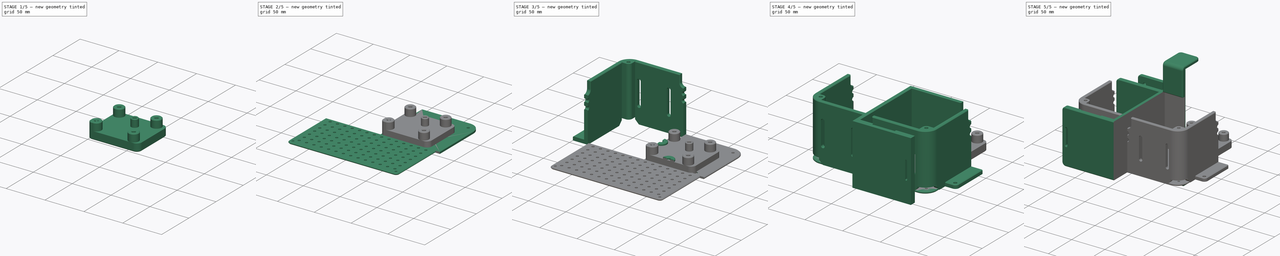
[diagram: build sequence overview — one tinted view per stage of 5, left to right]
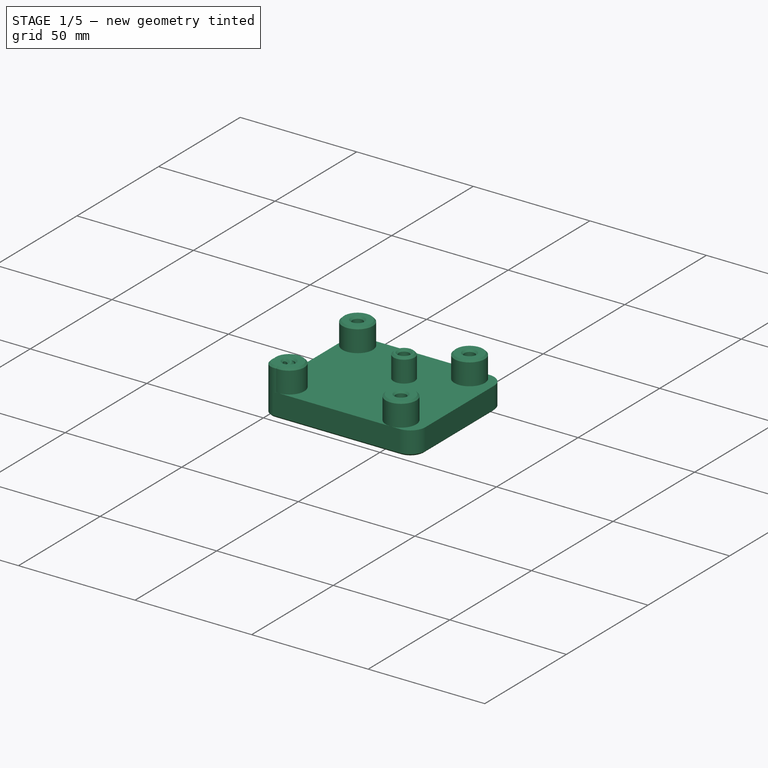
[diagram: stage 1 of 5 — iso view after this stage's code; geometry added in this stage tinted green]
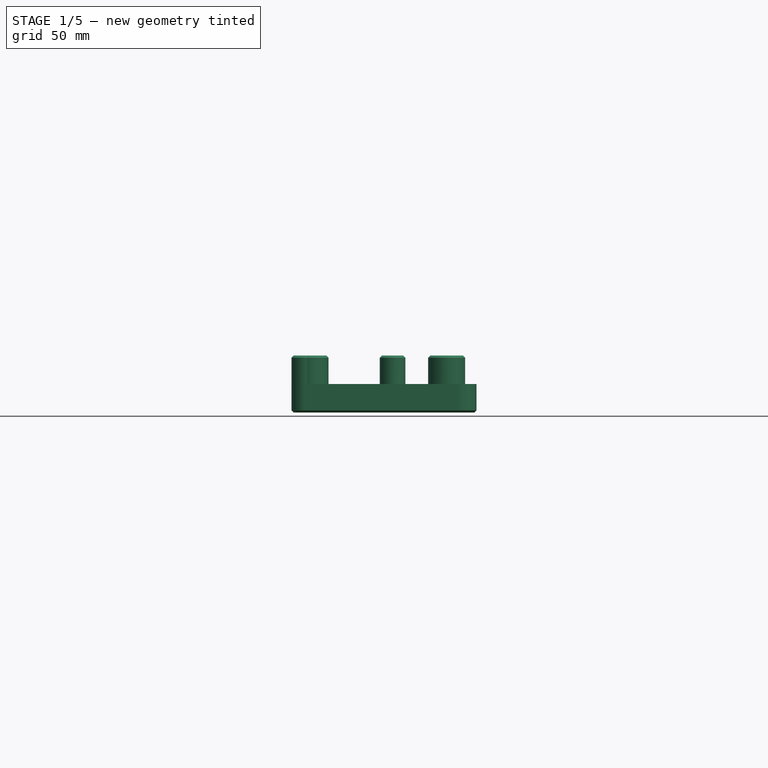
[diagram: stage 1 of 5 — front view after this stage's code; geometry added in this stage tinted green]
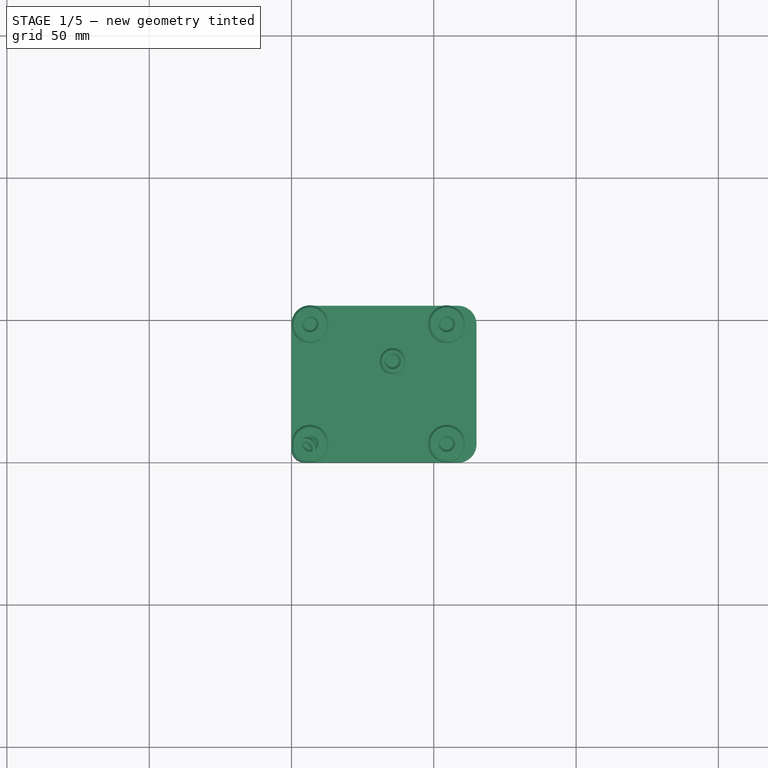
[diagram: stage 1 of 5 — top view after this stage's code; geometry added in this stage tinted green]
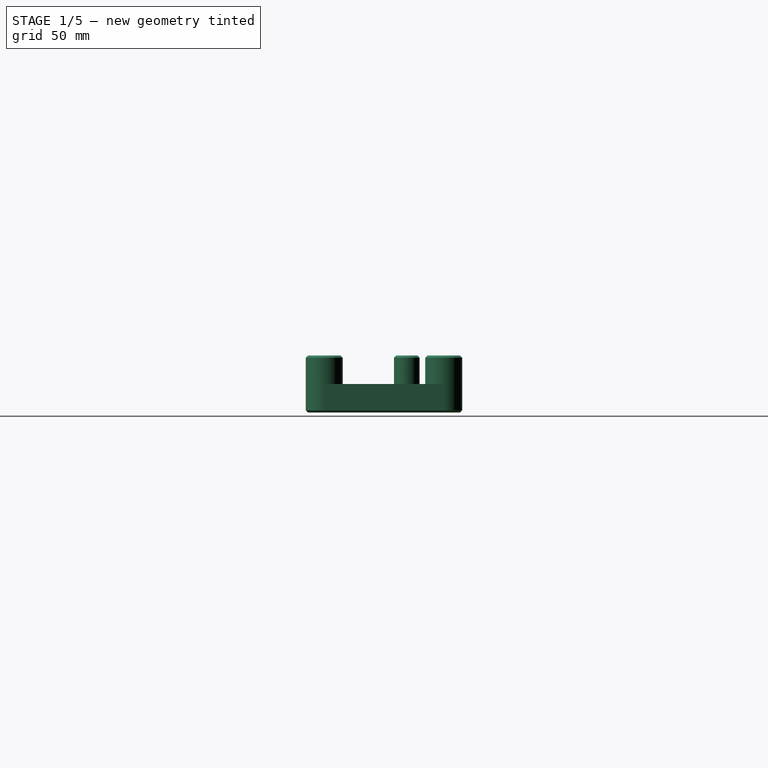
[diagram: stage 1 of 5 — right view after this stage's code; geometry added in this stage tinted green]
FCSTD DOCUMENT  (FreeCAD 0.21R33694 (Git))
Label: IWOS-Electrnics
License: All rights reserved
LicenseURL: http://en.wikipedia.org/wiki/All_rights_reserved
objects: Sketcher::SketchObject×28, PartDesign::Pocket×15, PartDesign::Pad×13, PartDesign::FeatureBase×10, Part::Mirroring×10, PartDesign::Chamfer×9, PartDesign::Body×8, App::Part×7, PartDesign::Fillet×6, PartDesign::LinearPattern×2, PartDesign::Groove×1, PartDesign::Boolean×1, PartDesign::PolarPattern×1
note: 148 computed .brp shape members not serialized (recipe doc carries the construction recipe); baked Part::Feature solids carry a one-line shape summary decoded from their .brp

FEATURE [App::Part] Part004  label="electronics_case_bottom"
  Group = -> [Body005,Clone003,Part__Mirroring003,Clone012,Part__Mirroring012,Clone013,Part__Mirroring013]
  Origin = -> Origin009
  Placement = pos=(0,0,5) rot=(0,0,1;0rad)
FEATURE [Sketcher::SketchObject] Sketch023
  FullyConstrained = true
  MapMode = 5
  Support = -> [XY_Plane018]
  sketch-geometry (4):
    g0: LineSegment StartX=0 StartY=0 StartZ=0 EndX=40 EndY=0 EndZ=0
    g1: LineSegment StartX=40 StartY=0 StartZ=0 EndX=40 EndY=40 EndZ=0
    g2: LineSegment StartX=40 StartY=40 StartZ=0 EndX=0 EndY=40 EndZ=0
    g3: LineSegment StartX=0 StartY=40 StartZ=0 EndX=0 EndY=0 EndZ=0
  constraints (11):
    c: Coincident(g0,g1)
    c: Coincident(g1,g2)
    c: Coincident(g2,g3)
    c: Coincident(g3,g0)
    c: Horizontal(g0)
    c: Horizontal(g2)
    c: Vertical(g1)
    c: Vertical(g3)
    c: Coincident(g0,g-1)
    c: Distance(g2) = 40
    c: Distance(g1) = 40
FEATURE [PartDesign::Pad] Pad011
  Direction = (1,1,1)
  Length = 10
  Length2 = 100
  Profile = -> Sketch023
  Type = 0
FEATURE [Sketcher::SketchObject] Sketch024
  FullyConstrained = true
  MapMode = 5
  Support = -> [XY_Plane018]
  sketch-geometry (10):
    g0: LineSegment StartX=0 StartY=0 StartZ=0 EndX=40 EndY=0 EndZ=0
    g1: LineSegment StartX=40 StartY=0 StartZ=0 EndX=40 EndY=40 EndZ=0
    g2: LineSegment StartX=40 StartY=40 StartZ=0 EndX=0 EndY=40 EndZ=0
    g3: LineSegment StartX=0 StartY=40 StartZ=0 EndX=0 EndY=0 EndZ=0
    g4: Circle CenterX=5 CenterY=5 CenterZ=0 NormalX=0 NormalY=0 NormalZ=1 AngleXU=0 Radius=2.25
    g5: Circle CenterX=35 CenterY=35 CenterZ=0 NormalX=0 NormalY=0 NormalZ=1 AngleXU=0 Radius=2.25
    g6: LineSegment StartX=5 StartY=5 StartZ=0 EndX=0 EndY=5 EndZ=0
    g7: LineSegment StartX=5 StartY=5 StartZ=0 EndX=5 EndY=0 EndZ=0
    g8: LineSegment StartX=35 StartY=35 StartZ=0 EndX=35 EndY=40 EndZ=0
    g9: LineSegment StartX=35 StartY=35 StartZ=0 EndX=40 EndY=35 EndZ=0
  constraints (29):
    c: Coincident(g0,g1)
    c: Coincident(g1,g2)
    c: Coincident(g2,g3)
    c: Coincident(g3,g0)
    c: Horizontal(g0)
    c: Horizontal(g2)
    c: Vertical(g1)
    c: Vertical(g3)
    c: Coincident(g0,g-1)
    c: Distance(g2) = 40
    c: Distance(g1) = 40
    c: Coincident(g6,g4)
    c: PointOnObject(g6,g3)
    c: Horizontal(g6)
    c: Coincident(g7,g4)
    c: PointOnObject(g7,g0)
    c: Coincident(g8,g5)
    c: PointOnObject(g8,g2)
    c: Vertical(g8)
    c: Coincident(g9,g5)
    c: PointOnObject(g9,g1)
    c: Horizontal(g9)
    c: Vertical(g7)
    c: Equal(g6,g7)
    c: Equal(g9,g8)
    c: Equal(g9,g7)
    c: Equal(g4,g5)
    c: Radius(g4) = 2.25
    c: DistanceX(g4,g5) = 30
FEATURE [PartDesign::Pocket] Pocket009
  BaseFeature = -> Pad011
  Direction = (1,1,1)
  Length = 9
  Length2 = 100
  Profile = -> Sketch024
  Reversed = true
  Type = 0
FEATURE [Sketcher::SketchObject] Sketch025
  FullyConstrained = true
  MapMode = 5
  Placement = pos=(0,0,10) rot=(0,0,1;0rad)
  Support = -> [Pocket009]
  sketch-geometry (10):
    g0: LineSegment StartX=0 StartY=0 StartZ=0 EndX=40 EndY=0 EndZ=0
    g1: LineSegment StartX=40 StartY=0 StartZ=0 EndX=40 EndY=40 EndZ=0
    g2: LineSegment StartX=40 StartY=40 StartZ=0 EndX=0 EndY=40 EndZ=0
    g3: LineSegment StartX=0 StartY=40 StartZ=0 EndX=0 EndY=0 EndZ=0
    g4: LineSegment StartX=0 StartY=4.5 StartZ=0 EndX=4.5 EndY=4.5 EndZ=0
    g5: LineSegment StartX=4.5 StartY=4.5 StartZ=0 EndX=4.5 EndY=0 EndZ=0
    g6: LineSegment StartX=35.5 StartY=40 StartZ=0 EndX=35.5 EndY=35.5 EndZ=0
    g7: LineSegment StartX=35.5 StartY=35.5 StartZ=0 EndX=40 EndY=35.5 EndZ=0
    g8: Circle CenterX=4.5 CenterY=4.5 CenterZ=0 NormalX=0 NormalY=0 NormalZ=1 AngleXU=0 Radius=4.5
    g9: Circle CenterX=35.5 CenterY=35.5 CenterZ=0 NormalX=0 NormalY=0 NormalZ=1 AngleXU=0 Radius=4.5
  constraints (29):
    c: Coincident(g0,g1)
    c: Coincident(g1,g2)
    c: Coincident(g2,g3)
    c: Coincident(g3,g0)
    c: Horizontal(g0)
    c: Horizontal(g2)
    c: Vertical(g1)
    c: Vertical(g3)
    c: Coincident(g0,g-1)
    c: PointOnObject(g4,g3)
    c: Horizontal(g4)
    c: Coincident(g5,g4)
    c: PointOnObject(g5,g0)
    c: Vertical(g5)
    c: PointOnObject(g6,g2)
    c: Vertical(g6)
    c: Coincident(g7,g6)
    c: PointOnObject(g7,g1)
    c: Horizontal(g7)
    c: Coincident(g8,g4)
    c: Coincident(g9,g6)
    c: Equal(g4,g5)
    c: Equal(g6,g7)
    c: Distance(g2) = 40
    c: Distance(g1) = 40
    c: DistanceX(g8,g9) = 31
    c: Equal(g4,g6)
    c: Equal(g8,g9)
    c: Tangent(g8,g0)
FEATURE [PartDesign::Pad] Pad012
  BaseFeature = -> Pocket009
  Direction = (1,1,1)
  Length = 10
  Length2 = 100
  Profile = -> Sketch025
  Type = 0
FEATURE [Sketcher::SketchObject] Sketch026
  FullyConstrained = true
  MapMode = 5
  Placement = pos=(0,0,20) rot=(0,0,1;0rad)
  Support = -> [Pad012]
  sketch-geometry (10):
    g0: LineSegment StartX=0 StartY=0 StartZ=0 EndX=40 EndY=0 EndZ=0
    g1: LineSegment StartX=40 StartY=0 StartZ=0 EndX=40 EndY=40 EndZ=0
    g2: LineSegment StartX=40 StartY=40 StartZ=0 EndX=0 EndY=40 EndZ=0
    g3: LineSegment StartX=0 StartY=40 StartZ=0 EndX=0 EndY=0 EndZ=0
    g4: LineSegment StartX=4.5 StartY=0 StartZ=0 EndX=4.5 EndY=4.5 EndZ=0
    g5: LineSegment StartX=4.5 StartY=4.5 StartZ=0 EndX=0 EndY=4.5 EndZ=0
    g6: LineSegment StartX=35.5 StartY=40 StartZ=0 EndX=35.5 EndY=35.5 EndZ=0
    g7: LineSegment StartX=35.5 StartY=35.5 StartZ=0 EndX=40 EndY=35.5 EndZ=0
    g8: Circle CenterX=4.5 CenterY=4.5 CenterZ=0 NormalX=0 NormalY=0 NormalZ=1 AngleXU=0 Radius=2.25
    g9: Circle CenterX=35.5 CenterY=35.5 CenterZ=0 NormalX=0 NormalY=0 NormalZ=1 AngleXU=0 Radius=2.25
  constraints (29):
    c: Coincident(g0,g1)
    c: Coincident(g1,g2)
    c: Coincident(g2,g3)
    c: Coincident(g3,g0)
    c: Horizontal(g0)
    c: Horizontal(g2)
    c: Vertical(g1)
    c: Vertical(g3)
    c: Coincident(g0,g-1)
    c: PointOnObject(g4,g0)
    c: Vertical(g4)
    c: Coincident(g5,g4)
    c: PointOnObject(g5,g3)
    c: Horizontal(g5)
    c: Equal(g5,g4)
    c: Distance(g2) = 40
    c: Distance(g1) = 40
    c: PointOnObject(g6,g2)
    c: Vertical(g6)
    c: Coincident(g7,g6)
    c: PointOnObject(g7,g1)
    c: Horizontal(g7)
    c: Equal(g6,g7)
    c: Equal(g6,g5)
    c: Coincident(g8,g4)
    c: Coincident(g9,g6)
    c: Equal(g8,g9)
    c: Radius(g8) = 2.25
    c: DistanceX(g8,g9) = 31
FEATURE [PartDesign::Pocket] Pocket010
  BaseFeature = -> Pad012
  Direction = (1,1,1)
  Length = 9
  Length2 = 100
  Profile = -> Sketch026
  Type = 0
FEATURE [PartDesign::Fillet] Fillet005
  Base = -> Pocket010 [Edge2,Edge6]
  BaseFeature = -> Pocket010
  Radius = 4.5
  SupportTransform = false
  UseAllEdges = false
FEATURE [PartDesign::Pocket] Pocket011
  BaseFeature = -> Fillet005
  Direction = (1,1,1)
  Length = 5
  Length2 = 100
  Profile = -> Fillet005 [Face6,Face14]
  Type = 1
FEATURE [Sketcher::SketchObject] Sketch027
  FullyConstrained = true
  MapMode = 5
  Support = -> [XY_Plane019]
  sketch-geometry (4):
    g0: LineSegment StartX=0 StartY=0 StartZ=0 EndX=65 EndY=0 EndZ=0
    g1: LineSegment StartX=65 StartY=0 StartZ=0 EndX=65 EndY=55 EndZ=0
    g2: LineSegment StartX=65 StartY=55 StartZ=0 EndX=0 EndY=55 EndZ=0
    g3: LineSegment StartX=0 StartY=55 StartZ=0 EndX=0 EndY=0 EndZ=0
  constraints (11):
    c: Coincident(g0,g1)
    c: Coincident(g1,g2)
    c: Coincident(g2,g3)
    c: Coincident(g3,g0)
    c: Horizontal(g0)
    c: Horizontal(g2)
    c: Vertical(g1)
    c: Vertical(g3)
    c: Coincident(g0,g-1)
    c: Distance(g2) = 65
    c: Distance(g1) = 55
FEATURE [PartDesign::Pad] Pad013
  Direction = (1,1,1)
  Length = 10
  Length2 = 100
  Profile = -> Sketch027
  Type = 0
FEATURE [Sketcher::SketchObject] Sketch028
  FullyConstrained = true
  MapMode = 5
  Support = -> [XY_Plane019]
  sketch-geometry (10):
    g0: LineSegment StartX=0 StartY=0 StartZ=0 EndX=65 EndY=0 EndZ=0
    g1: LineSegment StartX=65 StartY=0 StartZ=0 EndX=65 EndY=55 EndZ=0
    g2: LineSegment StartX=65 StartY=55 StartZ=0 EndX=0 EndY=55 EndZ=0
    g3: LineSegment StartX=0 StartY=55 StartZ=0 EndX=0 EndY=0 EndZ=0
    g4: LineSegment StartX=0 StartY=7.5 StartZ=0 EndX=7.5 EndY=7.5 EndZ=0
    g5: LineSegment StartX=7.5 StartY=7.5 StartZ=0 EndX=7.5 EndY=0 EndZ=0
    g6: LineSegment StartX=57.5 StartY=55 StartZ=0 EndX=57.5 EndY=47.5 EndZ=0
    g7: LineSegment StartX=57.5 StartY=47.5 StartZ=0 EndX=65 EndY=47.5 EndZ=0
    g8: Circle CenterX=7.5 CenterY=7.5 CenterZ=0 NormalX=0 NormalY=0 NormalZ=1 AngleXU=0 Radius=2.25
    g9: Circle CenterX=57.5 CenterY=47.5 CenterZ=0 NormalX=0 NormalY=0 NormalZ=1 AngleXU=0 Radius=2.25
  constraints (29):
    c: Coincident(g0,g1)
    c: Coincident(g1,g2)
    c: Coincident(g2,g3)
    c: Coincident(g3,g0)
    c: Horizontal(g0)
    c: Horizontal(g2)
    c: Vertical(g1)
    c: Vertical(g3)
    c: Coincident(g0,g-1)
    c: Distance(g2) = 65
    c: Distance(g1) = 55
    c: PointOnObject(g4,g3)
    c: Horizontal(g4)
    c: Coincident(g5,g4)
    c: PointOnObject(g5,g0)
    c: Vertical(g5)
    c: PointOnObject(g6,g2)
    c: Vertical(g6)
    c: Coincident(g7,g6)
    c: PointOnObject(g7,g1)
    c: Horizontal(g7)
    c: Equal(g7,g4)
    c: Equal(g5,g6)
    c: DistanceX(g4,g6) = 50
    c: DistanceY(g4,g6) = 40
    c: Coincident(g8,g4)
    c: Coincident(g9,g6)
    c: Equal(g8,g9)
    c: Radius(g8) = 2.25
FEATURE [PartDesign::Pocket] Pocket012
  BaseFeature = -> Pad013
  Direction = (1,1,1)
  Length = 9
  Length2 = 100
  Profile = -> Sketch028
  Reversed = true
  Type = 0
FEATURE [Sketcher::SketchObject] Sketch029
  FullyConstrained = true
  MapMode = 5
  Placement = pos=(0,0,10) rot=(0,0,1;0rad)
  Support = -> [Pocket012]
  sketch-geometry (14):
    g0: LineSegment StartX=0 StartY=0 StartZ=0 EndX=65 EndY=0 EndZ=0
    g1: LineSegment StartX=65 StartY=0 StartZ=0 EndX=65 EndY=55 EndZ=0
    g2: LineSegment StartX=65 StartY=55 StartZ=0 EndX=0 EndY=55 EndZ=0
    g3: LineSegment StartX=0 StartY=55 StartZ=0 EndX=0 EndY=0 EndZ=0
    g4: Circle CenterX=6.5 CenterY=48.5 CenterZ=0 NormalX=0 NormalY=0 NormalZ=1 AngleXU=0 Radius=6.5
    g5: Circle CenterX=6.5 CenterY=6.5 CenterZ=0 NormalX=0 NormalY=0 NormalZ=1 AngleXU=0 Radius=6.5
    g6: Circle CenterX=54.5 CenterY=48.5 CenterZ=0 NormalX=0 NormalY=0 NormalZ=1 AngleXU=0 Radius=6.5
    g7: Circle CenterX=54.5 CenterY=6.5 CenterZ=0 NormalX=0 NormalY=0 NormalZ=1 AngleXU=0 Radius=6.5
    g8: LineSegment StartX=6.5 StartY=6.5 StartZ=0 EndX=6.5 EndY=48.5 EndZ=0
    g9: LineSegment StartX=6.5 StartY=48.5 StartZ=0 EndX=54.5 EndY=48.5 EndZ=0
    g10: LineSegment StartX=54.5 StartY=48.5 StartZ=0 EndX=54.5 EndY=6.5 EndZ=0
    g11: LineSegment StartX=54.5 StartY=6.5 StartZ=0 EndX=6.5 EndY=6.5 EndZ=0
    g12: LineSegment StartX=6.5 StartY=48.5 StartZ=0 EndX=6.5 EndY=55 EndZ=0
    g13: LineSegment StartX=6.5 StartY=6.5 StartZ=0 EndX=6.5 EndY=0 EndZ=0
  constraints (37):
    c: Coincident(g0,g1)
    c: Coincident(g1,g2)
    c: Coincident(g2,g3)
    c: Coincident(g3,g0)
    c: Horizontal(g0)
    c: Horizontal(g2)
    c: Vertical(g1)
    c: Vertical(g3)
    c: Coincident(g0,g-1)
    c: Distance(g2) = 65
    c: Distance(g1) = 55
    c: Coincident(g8,g5)
    c: Coincident(g8,g4)
    c: Vertical(g8)
    c: Coincident(g9,g4)
    c: Coincident(g9,g6)
    c: Horizontal(g9)
    c: Coincident(g10,g6)
    c: Coincident(g10,g7)
    c: Vertical(g10)
    c: Coincident(g11,g7)
    c: Coincident(g11,g5)
    c: Horizontal(g11)
    c: Distance(g8) = 42
    c: Distance(g9) = 48
    c: Coincident(g12,g4)
    c: PointOnObject(g12,g2)
    c: Vertical(g12)
    c: Coincident(g13,g5)
    c: PointOnObject(g13,g0)
    c: Vertical(g13)
    c: Equal(g12,g13)
    c: Equal(g4,g5)
    c: Equal(g7,g6)
    c: Tangent(g4,g2)
    c: Tangent(g4,g3)
    c: Equal(g4,g6)
FEATURE [PartDesign::Pad] Pad014
  BaseFeature = -> Pocket012
  Direction = (1,1,1)
  Length = 10
  Length2 = 100
  Profile = -> Sketch029
  Type = 0
FEATURE [Sketcher::SketchObject] Sketch030
  FullyConstrained = true
  MapMode = 5
  Placement = pos=(0,0,20) rot=(0,0,1;0rad)
  Support = -> [Pad014]
  sketch-geometry (16):
    g0: LineSegment StartX=0 StartY=0 StartZ=0 EndX=65 EndY=0 EndZ=0
    g1: LineSegment StartX=65 StartY=0 StartZ=0 EndX=65 EndY=55 EndZ=0
    g2: LineSegment StartX=65 StartY=55 StartZ=0 EndX=0 EndY=55 EndZ=0
    g3: LineSegment StartX=0 StartY=55 StartZ=0 EndX=0 EndY=0 EndZ=0
    g4: LineSegment StartX=6.5 StartY=6.5 StartZ=0 EndX=54.5 EndY=6.5 EndZ=0
    g5: LineSegment StartX=54.5 StartY=6.5 StartZ=0 EndX=54.5 EndY=48.5 EndZ=0
    g6: LineSegment StartX=54.5 StartY=48.5 StartZ=0 EndX=6.5 EndY=48.5 EndZ=0
    g7: LineSegment StartX=6.5 StartY=48.5 StartZ=0 EndX=6.5 EndY=6.5 EndZ=0
    g8: Circle CenterX=6.5 CenterY=48.5 CenterZ=0 NormalX=0 NormalY=0 NormalZ=1 AngleXU=0 Radius=6.5
    g9: Circle CenterX=6.5 CenterY=6.5 CenterZ=0 NormalX=0 NormalY=0 NormalZ=1 AngleXU=0 Radius=6.5
    g10: LineSegment StartX=6.5 StartY=48.5 StartZ=0 EndX=6.5 EndY=55 EndZ=0
    g11: LineSegment StartX=6.5 StartY=6.5 StartZ=0 EndX=6.5 EndY=0 EndZ=0
    g12: Circle CenterX=6.5 CenterY=48.5 CenterZ=0 NormalX=0 NormalY=0 NormalZ=1 AngleXU=0 Radius=2.25
    g13: Circle CenterX=54.5 CenterY=48.5 CenterZ=0 NormalX=0 NormalY=0 NormalZ=1 AngleXU=0 Radius=2.25
    g14: Circle CenterX=54.5 CenterY=6.5 CenterZ=0 NormalX=0 NormalY=0 NormalZ=1 AngleXU=0 Radius=2.25
    g15: Circle CenterX=6.5 CenterY=6.5 CenterZ=0 NormalX=0 NormalY=0 NormalZ=1 AngleXU=0 Radius=2.25
  constraints (41):
    c: Coincident(g0,g1)
    c: Coincident(g1,g2)
    c: Coincident(g2,g3)
    c: Coincident(g3,g0)
    c: Horizontal(g0)
    c: Horizontal(g2)
    c: Vertical(g1)
    c: Vertical(g3)
    c: Coincident(g0,g-1)
    c: Coincident(g4,g5)
    c: Coincident(g5,g6)
    c: Coincident(g6,g7)
    c: Coincident(g7,g4)
    c: Horizontal(g4)
    c: Horizontal(g6)
    c: Vertical(g5)
    c: Vertical(g7)
    c: Coincident(g8,g6)
    c: Tangent(g8,g2)
    c: Coincident(g9,g4)
    c: Tangent(g9,g0)
    c: Coincident(g10,g6)
    c: PointOnObject(g10,g2)
    c: Vertical(g10)
    c: Coincident(g11,g4)
    c: PointOnObject(g11,g9)
    c: Vertical(g11)
    c: Equal(g10,g11)
    c: Tangent(g8,g3)
    c: Distance(g2) = 65
    c: Distance(g1) = 55
    c: Distance(g6) = 48
    c: Distance(g5) = 42
    c: Coincident(g12,g6)
    c: Coincident(g13,g5)
    c: Coincident(g14,g4)
    c: Coincident(g15,g4)
    c: Equal(g12,g15)
    c: Equal(g12,g13)
    c: Equal(g13,g14)
    c: Radius(g12) = 2.25
FEATURE [PartDesign::Pocket] Pocket013
  BaseFeature = -> Pad014
  Direction = (1,1,1)
  Length = 9
  Length2 = 100
  Profile = -> Sketch030
  Type = 0
FEATURE [PartDesign::Fillet] Fillet006
  Base = -> Pocket013 [Edge2,Edge12]
  BaseFeature = -> Pocket013
  Radius = 6.5
  SupportTransform = false
  UseAllEdges = false
FEATURE [PartDesign::Pocket] Pocket014
  BaseFeature = -> Fillet006
  Direction = (1,1,1)
  Length = 5
  Length2 = 100
  Profile = -> Fillet006 [Face12,Face6]
  Type = 1
FEATURE [PartDesign::Chamfer] Chamfer012
  Angle = 45
  Base = -> Pocket014 [Edge44,Edge50,Edge48,Edge52,Edge51,Edge46,Edge49,Edge42,Edge13,Edge14,Edge6]
  BaseFeature = -> Pocket014
  ChamferType = 0
  FlipDirection = false
  Size = 0.75
  Size2 = 1
  SupportTransform = false
  UseAllEdges = false
FEATURE [PartDesign::Body] Body009
  Group = -> [Sketch027,Pad013,Sketch028,Pocket012,Sketch029,Pad014,Sketch030,Pocket013,Fillet006,Pocket014,Chamfer012]
  Origin = -> Origin019
  Tip = -> Chamfer012
FEATURE [App::Part] Part008  label="u2d2_adapter"
  Group = -> [Body009]
  Origin = -> Origin016
  Placement = pos=(0,-70,7.5) rot=(0,0,1;0rad)
FEATURE [PartDesign::Chamfer] Chamfer013
  Angle = 45
  Base = -> Pocket011 [Edge5,Edge12,Edge13,Edge9,Edge38,Edge35,Edge39,Edge37]
  BaseFeature = -> Pocket011
  ChamferType = 0
  FlipDirection = false
  Size = 0.75
  Size2 = 1
  SupportTransform = false
  UseAllEdges = false
FEATURE [PartDesign::Body] Body008
  Group = -> [Sketch023,Pad011,Sketch024,Pocket009,Sketch025,Pad012,Sketch026,Pocket010,Fillet005,Pocket011,Chamfer013]
  Origin = -> Origin018
  Tip = -> Chamfer013
FEATURE [App::Part] Part007  label="tmcm_1640_adapter"
  Group = -> [Body008]
  Origin = -> Origin015
  Placement = pos=(0,0,7.5) rot=(0,0,1;0rad)
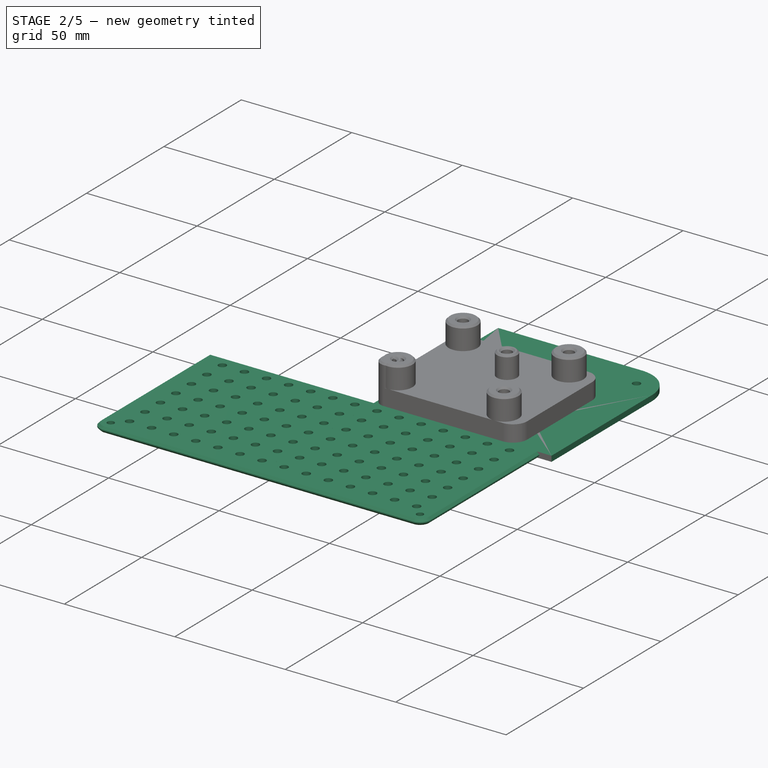
[diagram: stage 2 of 5 — iso view after this stage's code; geometry added in this stage tinted green]
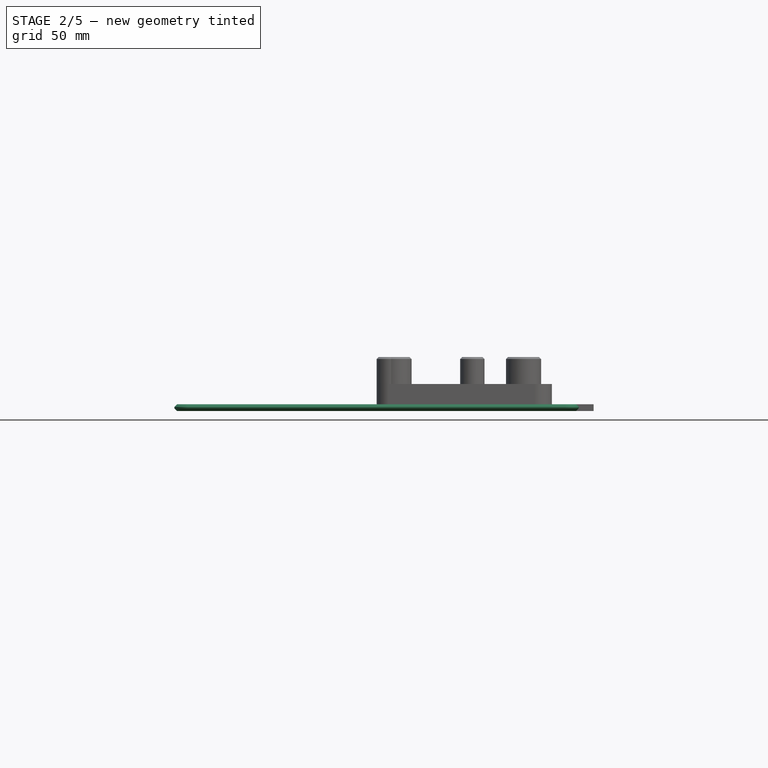
[diagram: stage 2 of 5 — front view after this stage's code; geometry added in this stage tinted green]
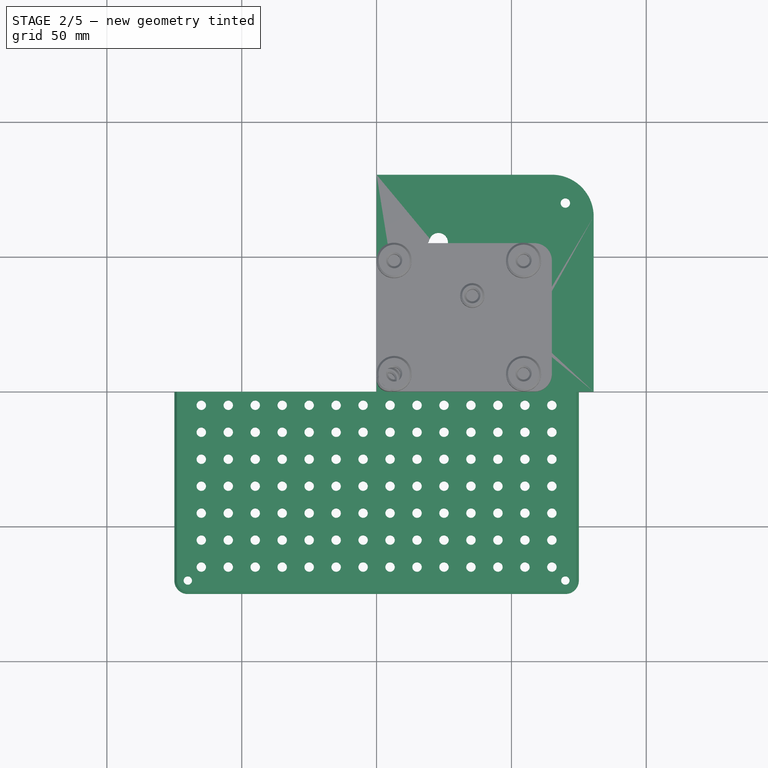
[diagram: stage 2 of 5 — top view after this stage's code; geometry added in this stage tinted green]
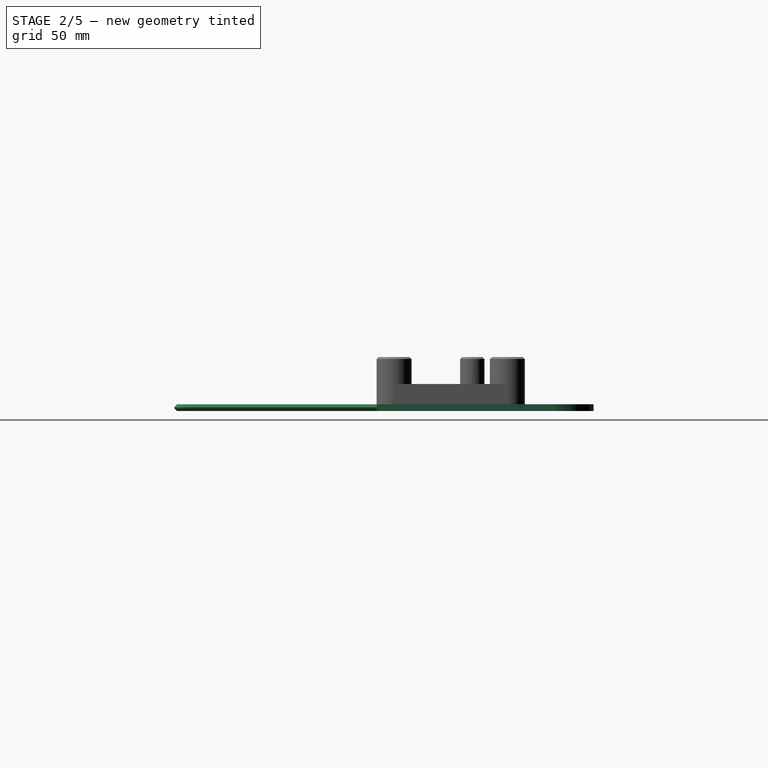
[diagram: stage 2 of 5 — right view after this stage's code; geometry added in this stage tinted green]
FEATURE [App::Part] Part002  label="battery_frame_main_part"
  Group = -> [Body003,Clone,Part__Mirroring]
  Origin = -> Origin004
  Placement = pos=(200,0,0) rot=(0,0,1;0rad)
FEATURE [Sketcher::SketchObject] Sketch010
  FullyConstrained = true
  MapMode = 5
  Support = -> [XY_Plane010]
  sketch-geometry (14):
    g0: LineSegment StartX=0 StartY=0 StartZ=0 EndX=75 EndY=0 EndZ=0
    g1: LineSegment StartX=75 StartY=0 StartZ=0 EndX=75 EndY=65 EndZ=0
    g2: LineSegment StartX=65 StartY=75 StartZ=0 EndX=65 EndY=65 EndZ=0
    g3: LineSegment StartX=65 StartY=65 StartZ=0 EndX=75 EndY=65 EndZ=0
    g4: LineSegment StartX=0 StartY=75 StartZ=0 EndX=0 EndY=0 EndZ=0
    g5: LineSegment StartX=0 StartY=75 StartZ=0 EndX=65 EndY=75 EndZ=0
    g6: LineSegment StartX=65 StartY=70 StartZ=0 EndX=70 EndY=70 EndZ=0
    g7: LineSegment StartX=70 StartY=70 StartZ=0 EndX=70 EndY=65 EndZ=0
    g8: Circle CenterX=70 CenterY=70 CenterZ=0 NormalX=0 NormalY=0 NormalZ=1 AngleXU=0 Radius=1.55
    g9: ArcOfCircle CenterX=70 CenterY=70 CenterZ=0 NormalX=0 NormalY=0 NormalZ=1 AngleXU=0 Radius=5 StartAngle=0 EndAngle=1.5708
    g10: LineSegment StartX=65 StartY=75 StartZ=0 EndX=70 EndY=75 EndZ=0
    g11: LineSegment StartX=75 StartY=70 StartZ=0 EndX=75 EndY=65 EndZ=0
    g12: LineSegment StartX=70 StartY=70 StartZ=0 EndX=70 EndY=75 EndZ=0
    g13: LineSegment StartX=70 StartY=70 StartZ=0 EndX=75 EndY=70 EndZ=0
  constraints (38):
    c: Coincident(g-1,g0)
    c: PointOnObject(g0,g-1)
    c: Coincident(g0,g1)
    c: Vertical(g1)
    c: Vertical(g2)
    c: Coincident(g4,g0)
    c: Vertical(g4)
    c: Horizontal(g5)
    c: Distance(g3) = 10
    c: Distance(g0) = 75
    c: Coincident(g2,g5)
    c: Coincident(g3,g2)
    c: Coincident(g3,g1)
    c: Coincident(g5,g4)
    c: PointOnObject(g6,g2)
    c: Horizontal(g6)
    c: Coincident(g7,g6)
    c: PointOnObject(g7,g3)
    c: Vertical(g7)
    c: Equal(g6,g7)
    c: Distance(g6) = 5
    c: Coincident(g8,g6)
    c: Radius(g8) = 1.55
    c: Equal(g4,g0)
    c: Horizontal(g3)
    c: Coincident(g9,g8)
    c: Coincident(g10,g5)
    c: Coincident(g10,g9)
    c: Horizontal(g10)
    c: Coincident(g11,g9)
    c: Coincident(g11,g1)
    c: Coincident(g12,g8)
    c: Coincident(g12,g9)
    c: Vertical(g12)
    c: Coincident(g13,g8)
    c: Coincident(g13,g9)
    c: Horizontal(g13)
    c: Vertical(g11)
FEATURE [PartDesign::Pad] Pad006
  Direction = (1,1,1)
  Length = 2.5
  Length2 = 100
  Profile = -> Sketch010
  Type = 0
FEATURE [PartDesign::Pocket] Pocket002
  BaseFeature = -> Pad006
  Direction = (1,1,1)
  Length = 5
  Length2 = 100
  Profile = -> Sketch011
  Type = 2
FEATURE [PartDesign::LinearPattern] LinearPattern
  BaseFeature = -> Pocket002
  Direction = -> Sketch011 [H_Axis]
  Length = 60
  Occurrences = 7
  Originals = -> [Pocket002]
  Reversed = true
FEATURE [Sketcher::SketchObject] Sketch017
  FullyConstrained = true
  MapMode = 5
  Support = -> [XY_Plane014]
  sketch-geometry (10):
    g0: LineSegment StartX=0 StartY=0 StartZ=0 EndX=80.5 EndY=0 EndZ=0
    g1: LineSegment StartX=80.5 StartY=0 StartZ=0 EndX=80.5 EndY=65 EndZ=0
    g2: ArcOfCircle CenterX=65 CenterY=65 CenterZ=0 NormalX=0 NormalY=0 NormalZ=1 AngleXU=0 Radius=15.5 StartAngle=-9e-16 EndAngle=1.5708
    g3: LineSegment StartX=65 StartY=80.5 StartZ=0 EndX=0 EndY=80.5 EndZ=0
    g4: LineSegment StartX=0 StartY=80.5 StartZ=0 EndX=0 EndY=0 EndZ=0
    g5: LineSegment StartX=65 StartY=80.5 StartZ=0 EndX=65 EndY=65 EndZ=0
    g6: LineSegment StartX=65 StartY=65 StartZ=0 EndX=80.5 EndY=65 EndZ=0
    g7: LineSegment StartX=65 StartY=70 StartZ=0 EndX=70 EndY=70 EndZ=0
    g8: LineSegment StartX=70 StartY=70 StartZ=0 EndX=70 EndY=65 EndZ=0
    g9: Circle CenterX=70 CenterY=70 CenterZ=0 NormalX=0 NormalY=0 NormalZ=1 AngleXU=0 Radius=1.75
  constraints (27):
    c: Coincident(g-1,g0)
    c: PointOnObject(g0,g-1)
    c: Coincident(g0,g1)
    c: Vertical(g1)
    c: Tangent(g1,g2) = -1.5708
    c: Coincident(g2,g3)
    c: PointOnObject(g3,g-2)
    c: Horizontal(g3)
    c: Coincident(g3,g4)
    c: Coincident(g4,g0)
    c: Distance(g0) = 80.5
    c: Equal(g0,g4)
    c: Coincident(g5,g2)
    c: Coincident(g5,g2)
    c: Vertical(g5)
    c: Coincident(g6,g2)
    c: Coincident(g6,g1)
    c: Distance(g6) = 15.5
    c: PointOnObject(g7,g5)
    c: Horizontal(g7)
    c: Coincident(g8,g7)
    c: PointOnObject(g8,g6)
    c: Vertical(g8)
    c: Distance(g7) = 5
    c: Distance(g8) = 5
    c: Coincident(g9,g7)
    c: Radius(g9) = 1.75
FEATURE [PartDesign::Pad] Pad008
  Direction = (1,1,1)
  Length = 2.5
  Length2 = 100
  Profile = -> Sketch017
  Type = 0
FEATURE [Sketcher::SketchObject] Sketch018
  FullyConstrained = true
  MapMode = 2
  Placement = pos=(0,0,2.5) rot=(0,0,1;0rad)
  sketch-geometry (9):
    g0: LineSegment StartX=0 StartY=0 StartZ=0 EndX=27.7164 EndY=11.4805 EndZ=0
    g1: ArcOfCircle CenterX=55.4328 CenterY=22.961 CenterZ=0 NormalX=0 NormalY=0 NormalZ=1 AngleXU=0 Radius=3.5 StartAngle=5.10509 EndAngle=8.24668
    g2: ArcOfCircle CenterX=27.7164 CenterY=11.4805 CenterZ=0 NormalX=0 NormalY=0 NormalZ=1 AngleXU=0 Radius=3.5 StartAngle=1.9635 EndAngle=5.10509
    g3: LineSegment StartX=26.377 StartY=14.7141 StartZ=0 EndX=54.0934 EndY=26.1946 EndZ=0
    g4: LineSegment StartX=29.0558 StartY=8.24692 StartZ=0 EndX=56.7722 EndY=19.7274 EndZ=0
    g5: LineSegment StartX=54.0934 StartY=26.1946 StartZ=0 EndX=55.4328 EndY=22.961 EndZ=0
    g6: LineSegment StartX=55.4328 StartY=22.961 StartZ=0 EndX=56.7722 EndY=19.7274 EndZ=0
    g7: LineSegment StartX=26.377 StartY=14.7141 StartZ=0 EndX=27.7164 EndY=11.4805 EndZ=0
    g8: LineSegment StartX=27.7164 StartY=11.4805 StartZ=0 EndX=29.0558 EndY=8.24692 EndZ=0
  constraints (24):
    c: Coincident(g0,g-1)
    c: PointOnObject(g1,g0)
    c: Coincident(g3,g2)
    c: Coincident(g3,g1)
    c: Coincident(g4,g2)
    c: Coincident(g4,g1)
    c: Coincident(g5,g1)
    c: Coincident(g5,g1)
    c: Coincident(g6,g1)
    c: Coincident(g6,g1)
    c: Coincident(g7,g2)
    c: Coincident(g7,g2)
    c: Coincident(g8,g2)
    c: Coincident(g8,g2)
    c: Perpendicular(g0,g7)
    c: Perpendicular(g0,g8)
    c: Perpendicular(g0,g6)
    c: Perpendicular(g0,g5)
    c: Distance(g3) = 30
    c: Distance(g5) = 3.5
    c: Equal(g5,g7)
    c: Coincident(g2,g0)
    c: Distance(g0) = 30
    c: Angle(g-1,g0) = 0.392699
FEATURE [PartDesign::Pocket] Pocket007
  BaseFeature = -> Pad008
  Direction = (1,1,1)
  Length = 5
  Length2 = 100
  Profile = -> Sketch018
  Type = 2
FEATURE [PartDesign::PolarPattern] PolarPattern
  Angle = 90
  Axis = -> Sketch018 [N_Axis]
  BaseFeature = -> Pocket007
  Occurrences = 3
  Originals = -> [Pocket007]
FEATURE [PartDesign::Chamfer] Chamfer006
  Angle = 45
  Base = -> LinearPattern [Edge4,Edge3]
  BaseFeature = -> LinearPattern
  ChamferType = 0
  FlipDirection = false
  Size = 1
  Size2 = 1
  SupportTransform = false
  UseAllEdges = false
FEATURE [PartDesign::Body] Body005
  Group = -> [Sketch010,Pad006,Sketch011,Pocket002,LinearPattern,Chamfer006]
  Origin = -> Origin010
  Tip = -> Chamfer006
FEATURE [PartDesign::FeatureBase] Clone003
  BaseFeature = -> Body005
FEATURE [Part::Mirroring] Part__Mirroring003  label="Clone003 (Mirror #4)"
  Base = (0,0,0)
  Normal = (1,0,0)
  Source = -> Clone003
FEATURE [App::Part] Part006  label="electronics_case_top"
  Group = -> [Body007,Clone007,Part__Mirroring007,Clone009,Clone008,Part__Mirroring008,Part__Mirroring009]
  Origin = -> Origin013
  Placement = pos=(0,0,75) rot=(0,0,1;0rad)
FEATURE [PartDesign::FeatureBase] Clone012
  BaseFeature = -> Body005
FEATURE [Part::Mirroring] Part__Mirroring012  label="Clone012 (Mirror #9)"
  Base = (0,0,0)
  Normal = (0,1,0)
  Source = -> Clone012
FEATURE [PartDesign::FeatureBase] Clone013
  BaseFeature = -> Part__Mirroring003
FEATURE [Part::Mirroring] Part__Mirroring013  label="Clone013 (Mirror #10)"
  Base = (0,0,0)
  Normal = (0,1,0)
  Source = -> Clone013
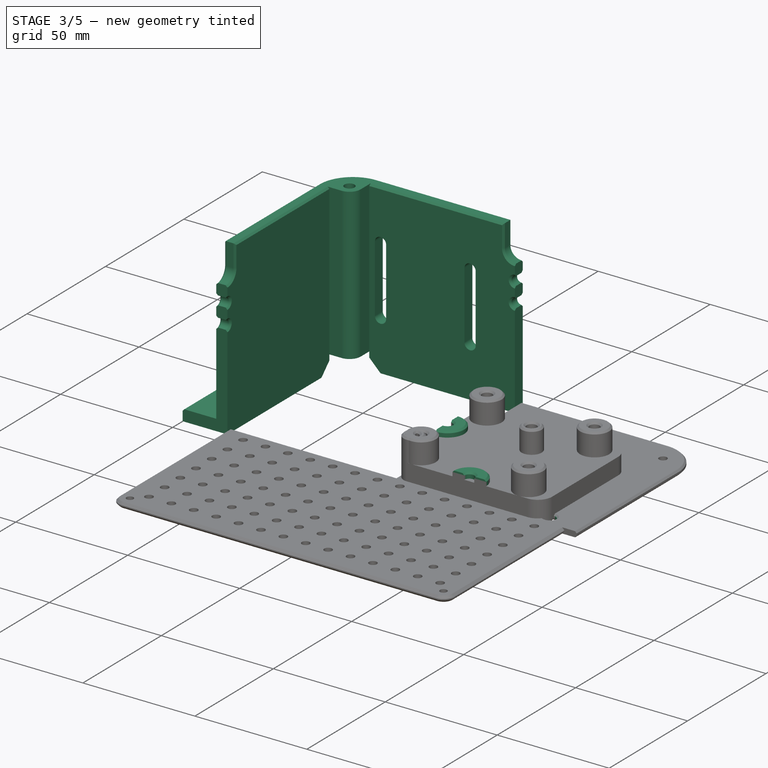
[diagram: stage 3 of 5 — iso view after this stage's code; geometry added in this stage tinted green]
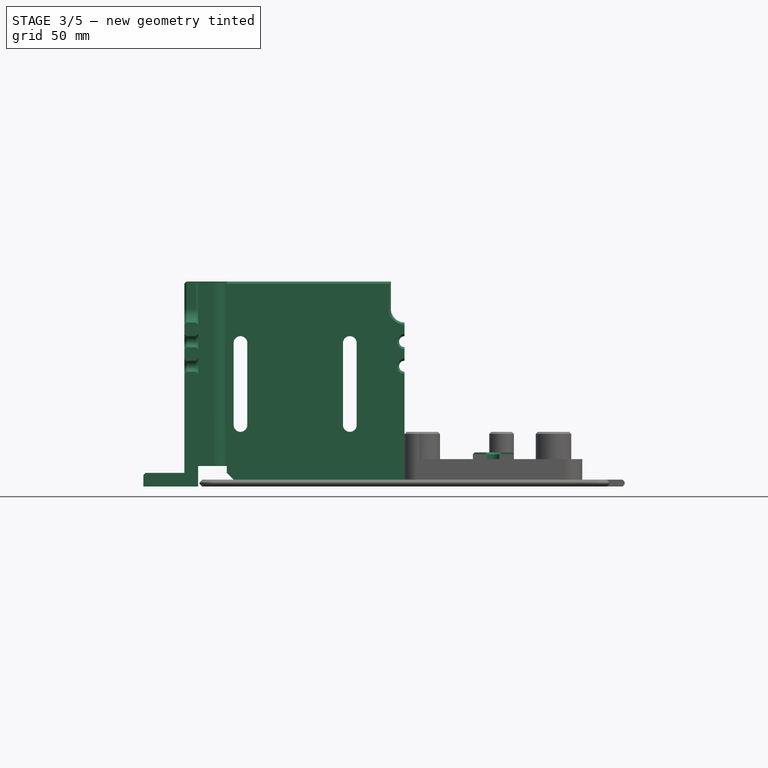
[diagram: stage 3 of 5 — front view after this stage's code; geometry added in this stage tinted green]
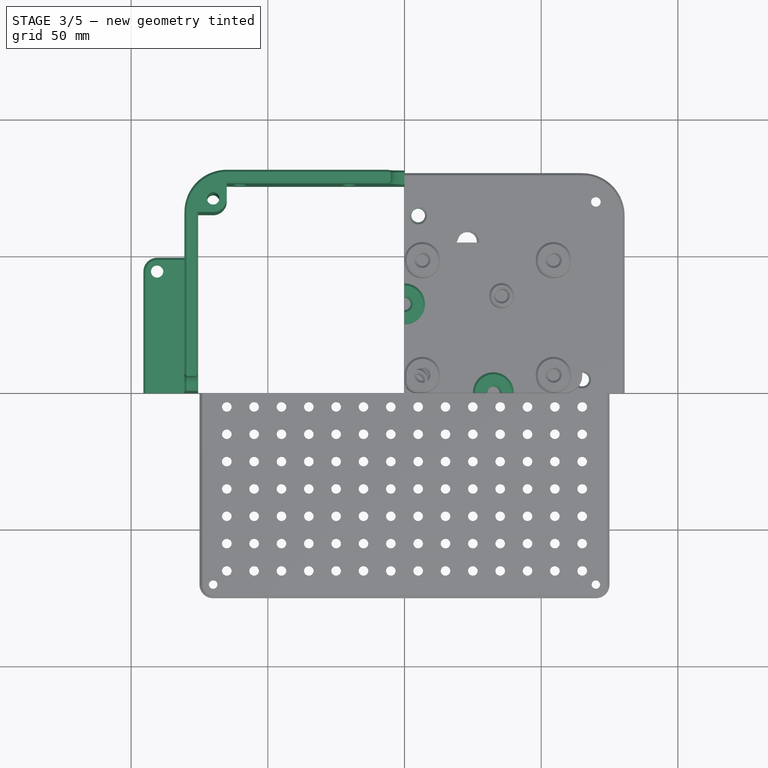
[diagram: stage 3 of 5 — top view after this stage's code; geometry added in this stage tinted green]
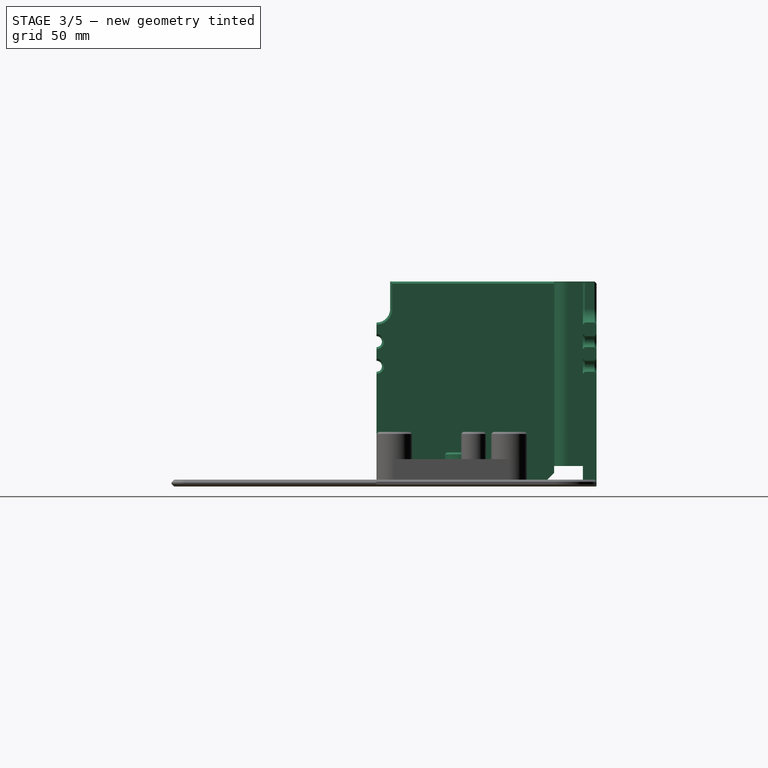
[diagram: stage 3 of 5 — right view after this stage's code; geometry added in this stage tinted green]
FEATURE [Sketcher::SketchObject] Sketch011
  FullyConstrained = true
  MapMode = 5
  Placement = pos=(0,0,2.5) rot=(0,0,1;0rad)
  Support = -> [Pad006]
  sketch-geometry (16):
    g0: LineSegment StartX=0 StartY=0 StartZ=0 EndX=75 EndY=0 EndZ=0
    g1: LineSegment StartX=75 StartY=0 StartZ=0 EndX=75 EndY=5 EndZ=0
    g2: LineSegment StartX=75 StartY=5 StartZ=0 EndX=65 EndY=5 EndZ=0
    g3: Circle CenterX=65 CenterY=5 CenterZ=0 NormalX=0 NormalY=0 NormalZ=1 AngleXU=0 Radius=1.75
    g4: LineSegment StartX=65 StartY=5 StartZ=0 EndX=65 EndY=15 EndZ=0
    g5: LineSegment StartX=65 StartY=15 StartZ=0 EndX=65 EndY=25 EndZ=0
    g6: LineSegment StartX=65 StartY=25 StartZ=0 EndX=65 EndY=35 EndZ=0
    g7: LineSegment StartX=65 StartY=35 StartZ=0 EndX=65 EndY=45 EndZ=0
    g8: LineSegment StartX=65 StartY=45 StartZ=0 EndX=65 EndY=55 EndZ=0
    g9: Circle CenterX=65 CenterY=15 CenterZ=0 NormalX=0 NormalY=0 NormalZ=1 AngleXU=0 Radius=1.75
    g10: Circle CenterX=65 CenterY=25 CenterZ=0 NormalX=0 NormalY=0 NormalZ=1 AngleXU=0 Radius=1.75
    g11: Circle CenterX=65 CenterY=35 CenterZ=0 NormalX=0 NormalY=0 NormalZ=1 AngleXU=0 Radius=1.75
    g12: Circle CenterX=65 CenterY=45 CenterZ=0 NormalX=0 NormalY=0 NormalZ=1 AngleXU=0 Radius=1.75
    g13: Circle CenterX=65 CenterY=55 CenterZ=0 NormalX=0 NormalY=0 NormalZ=1 AngleXU=0 Radius=1.75
    g14: LineSegment StartX=65 StartY=55 StartZ=0 EndX=65 EndY=65 EndZ=0
    g15: Circle CenterX=65 CenterY=65 CenterZ=0 NormalX=0 NormalY=0 NormalZ=1 AngleXU=0 Radius=1.75
  constraints (41):
    c: Coincident(g0,g-1)
    c: PointOnObject(g0,g-1)
    c: Coincident(g1,g0)
    c: Vertical(g1)
    c: Coincident(g2,g1)
    c: Horizontal(g2)
    c: Distance(g1) = 5
    c: Coincident(g3,g2)
    c: Radius(g3) = 1.75
    c: Coincident(g4,g3)
    c: Vertical(g4)
    c: Coincident(g4,g5)
    c: Vertical(g5)
    c: Coincident(g5,g6)
    c: Vertical(g6)
    c: Coincident(g6,g7)
    c: Vertical(g7)
    c: Coincident(g7,g8)
    c: Equal(g4,g5)
    c: Equal(g5,g6)
    c: Equal(g6,g7)
    c: Equal(g7,g8)
    c: Vertical(g8)
    c: Distance(g4) = 10
    c: Coincident(g9,g4)
    c: Coincident(g10,g5)
    c: Coincident(g11,g6)
    c: Coincident(g12,g7)
    c: Coincident(g13,g8)
    c: Equal(g3,g9)
    c: Equal(g9,g10)
    c: Equal(g10,g11)
    c: Equal(g11,g12)
    c: Equal(g12,g13)
    c: Coincident(g14,g13)
    c: Vertical(g14)
    c: Coincident(g15,g14)
    c: Equal(g14,g8)
    c: Equal(g13,g15)
    c: Distance(g0) = 75
    c: Distance(g2) = 10
FEATURE [Sketcher::SketchObject] Sketch012
  FullyConstrained = true
  MapMode = 5
  Support = -> [XY_Plane012]
  sketch-geometry (21):
    g0: LineSegment StartX=0 StartY=0 StartZ=0 EndX=75.5 EndY=0 EndZ=0
    g1: LineSegment StartX=75.5 StartY=0 StartZ=0 EndX=80.5 EndY=0 EndZ=0
    g2: LineSegment StartX=75.5 StartY=0 StartZ=0 EndX=75.5 EndY=65 EndZ=0
    g3: LineSegment StartX=65 StartY=75.5 StartZ=0 EndX=0 EndY=75.5 EndZ=0
    g4: LineSegment StartX=0 StartY=80.5 StartZ=0 EndX=65 EndY=80.5 EndZ=0
    g5: LineSegment StartX=80.5 StartY=0 StartZ=0 EndX=80.5 EndY=65 EndZ=0
    g6: ArcOfCircle CenterX=65 CenterY=65 CenterZ=0 NormalX=0 NormalY=0 NormalZ=1 AngleXU=0 Radius=15.5 StartAngle=0 EndAngle=1.5708
    g7: LineSegment StartX=75.5 StartY=65 StartZ=0 EndX=80.5 EndY=65 EndZ=0
    g8: LineSegment StartX=65 StartY=80.5 StartZ=0 EndX=65 EndY=75.5 EndZ=0
    g9: LineSegment StartX=0 StartY=75.5 StartZ=0 EndX=0 EndY=0 EndZ=0
    g10: LineSegment StartX=65 StartY=75.5 StartZ=0 EndX=65 EndY=65 EndZ=0
    g11: LineSegment StartX=65 StartY=65 StartZ=0 EndX=75.5 EndY=65 EndZ=0
    g12: LineSegment StartX=65 StartY=75.5 StartZ=0 EndX=75.5 EndY=75.5 EndZ=0
    g13: LineSegment StartX=75.5 StartY=65 StartZ=0 EndX=75.5 EndY=75.5 EndZ=0
    g14: LineSegment StartX=70 StartY=75.5 StartZ=0 EndX=70 EndY=70 EndZ=0
    g15: LineSegment StartX=70 StartY=70 StartZ=0 EndX=75.5 EndY=70 EndZ=0
    g16: ArcOfCircle CenterX=70 CenterY=70 CenterZ=0 NormalX=0 NormalY=0 NormalZ=1 AngleXU=0 Radius=5 StartAngle=3.14159 EndAngle=4.71239
    g17: LineSegment StartX=65 StartY=70 StartZ=0 EndX=65 EndY=75.5 EndZ=0
    g18: LineSegment StartX=70 StartY=65 StartZ=0 EndX=75.5 EndY=65 EndZ=0
    g19: Circle CenterX=70 CenterY=70 CenterZ=0 NormalX=0 NormalY=0 NormalZ=1 AngleXU=0 Radius=2.25
    g20: LineSegment StartX=0 StartY=75.5 StartZ=0 EndX=0 EndY=80.5 EndZ=0
  constraints (58):
    c: PointOnObject(g0,g-2)
    c: PointOnObject(g0,g-1)
    c: Horizontal(g0)
    c: Distance(g0) = 75.5
    c: Coincident(g0,g1)
    c: PointOnObject(g1,g-1)
    c: Coincident(g1,g2)
    c: Vertical(g2)
    c: Horizontal(g3)
    c: Horizontal(g4)
    c: Vertical(g5)
    c: Coincident(g6,g4)
    c: Coincident(g6,g5)
    c: Coincident(g7,g2)
    c: Coincident(g7,g5)
    c: Coincident(g8,g4)
    c: Vertical(g8)
    c: Horizontal(g7)
    c: PointOnObject(g9,g-2)
    c: Coincident(g8,g3)
    c: Coincident(g10,g3)
    c: Coincident(g10,g6)
    c: Vertical(g10)
    c: Coincident(g11,g6)
    c: Coincident(g11,g2)
    c: Horizontal(g11)
    c: Coincident(g1,g5)
    c: Coincident(g12,g3)
    c: Horizontal(g12)
    c: Coincident(g13,g2)
    c: Coincident(g13,g12)
    c: Vertical(g13)
    c: PointOnObject(g14,g12)
    c: Vertical(g14)
    c: Coincident(g15,g14)
    c: PointOnObject(g15,g13)
    c: Horizontal(g15)
    c: Equal(g14,g15)
    c: Distance(g15) = 5.5
    c: Coincident(g16,g14)
    c: PointOnObject(g16,g10)
    c: Tangent(g16,g10)
    c: Coincident(g17,g16)
    c: Coincident(g17,g3)
    c: Coincident(g18,g16)
    c: Coincident(g18,g2)
    c: Horizontal(g18)
    c: Coincident(g19,g16)
    c: Coincident(g3,g9)
    c: Coincident(g20,g3)
    c: Coincident(g20,g4)
    c: Vertical(g20)
    c: Distance(g11) = 10.5
    c: Equal(g10,g11)
    c: Distance(g1) = 5
    c: Equal(g0,g9)
    c: Coincident(g9,g-1)
    c: Radius(g19) = 2.25
FEATURE [PartDesign::Pad] Pad007
  Direction = (1,1,1)
  Length = 75
  Length2 = 100
  Profile = -> Sketch012
  Type = 0
FEATURE [Sketcher::SketchObject] Sketch013
  FullyConstrained = true
  MapMode = 5
  Placement = pos=(0,75.5,0) rot=(1,0,0;1.5708rad)
  Support = -> [Pad007]
  sketch-geometry (10):
    g0: LineSegment StartX=0 StartY=0 StartZ=0 EndX=65 EndY=0 EndZ=0
    g1: LineSegment StartX=65 StartY=0 StartZ=0 EndX=65 EndY=75 EndZ=0
    g2: LineSegment StartX=65 StartY=75 StartZ=0 EndX=0 EndY=75 EndZ=0
    g3: LineSegment StartX=0 StartY=75 StartZ=0 EndX=0 EndY=0 EndZ=0
    g4: ArcOfCircle CenterX=20 CenterY=52.5 CenterZ=0 NormalX=0 NormalY=0 NormalZ=1 AngleXU=0 Radius=2.5 StartAngle=3.9601e-11 EndAngle=3.14159
    g5: ArcOfCircle CenterX=20 CenterY=22.5 CenterZ=0 NormalX=0 NormalY=0 NormalZ=1 AngleXU=0 Radius=2.5 StartAngle=3.14159 EndAngle=6.28319
    g6: LineSegment StartX=17.5 StartY=52.5 StartZ=0 EndX=17.5 EndY=22.5 EndZ=0
    g7: LineSegment StartX=22.5 StartY=52.5 StartZ=0 EndX=22.5 EndY=22.5 EndZ=0
    g8: LineSegment StartX=20 StartY=52.5 StartZ=0 EndX=20 EndY=75 EndZ=0
    g9: LineSegment StartX=20 StartY=22.5 StartZ=0 EndX=20 EndY=0 EndZ=0
  constraints (27):
    c: Coincident(g0,g1)
    c: Coincident(g1,g2)
    c: Coincident(g2,g3)
    c: Coincident(g3,g0)
    c: Horizontal(g0)
    c: Horizontal(g2)
    c: Vertical(g1)
    c: Vertical(g3)
    c: Coincident(g0,g-1)
    c: Distance(g3) = 75
    c: Distance(g2) = 65
    c: Tangent(g4,g7) = 1.5708
    c: Tangent(g4,g6) = -1.5708
    c: Tangent(g6,g5) = -1.5708
    c: Tangent(g7,g5) = 1.5708
    c: Vertical(g6)
    c: Equal(g4,g5)
    c: DistanceX(g4,g4) = 5
    c: DistanceX(g2,g4) = 20
    c: Coincident(g8,g4)
    c: PointOnObject(g8,g2)
    c: Vertical(g8)
    c: Coincident(g9,g5)
    c: PointOnObject(g9,g0)
    c: Vertical(g9)
    c: Equal(g8,g9)
    c: Distance(g6) = 30
FEATURE [PartDesign::Pocket] Pocket003
  BaseFeature = -> Pad007
  Direction = (1,1,1)
  Length = 5
  Length2 = 100
  Profile = -> Sketch013
  Type = 2
FEATURE [PartDesign::LinearPattern] LinearPattern001
  BaseFeature = -> Pocket003
  Direction = -> Sketch013 [H_Axis]
  Length = 40
  Occurrences = 2
  Originals = -> [Pocket003]
FEATURE [Sketcher::SketchObject] Sketch014
  FullyConstrained = true
  MapMode = 5
  Support = -> [XY_Plane012]
  sketch-geometry (12):
    g0: LineSegment StartX=0 StartY=0 StartZ=0 EndX=75.5 EndY=0 EndZ=0
    g1: LineSegment StartX=75.5 StartY=0 StartZ=0 EndX=75.5 EndY=65 EndZ=0
    g2: LineSegment StartX=65 StartY=75.5 StartZ=0 EndX=0 EndY=75.5 EndZ=0
    g3: LineSegment StartX=0 StartY=75.5 StartZ=0 EndX=0 EndY=0 EndZ=0
    g4: LineSegment StartX=65 StartY=75.5 StartZ=0 EndX=65 EndY=65 EndZ=0
    g5: LineSegment StartX=65 StartY=65 StartZ=0 EndX=75.5 EndY=65 EndZ=0
    g6: LineSegment StartX=65 StartY=75.5 StartZ=0 EndX=75.5 EndY=75.5 EndZ=0
    g7: LineSegment StartX=75.5 StartY=65 StartZ=0 EndX=75.5 EndY=75.5 EndZ=0
    g8: LineSegment StartX=65 StartY=75.5 StartZ=0 EndX=65 EndY=80.5 EndZ=0
    g9: LineSegment StartX=75.5 StartY=65 StartZ=0 EndX=80.5 EndY=65 EndZ=0
    g10: LineSegment StartX=80.5 StartY=65 StartZ=0 EndX=80.5 EndY=80.5 EndZ=0
    g11: LineSegment StartX=65 StartY=80.5 StartZ=0 EndX=80.5 EndY=80.5 EndZ=0
  constraints (33):
    c: Coincident(g-1,g0)
    c: PointOnObject(g0,g-1)
    c: Coincident(g0,g1)
    c: Vertical(g1)
    c: PointOnObject(g2,g-2)
    c: Horizontal(g2)
    c: Coincident(g2,g3)
    c: Coincident(g3,g0)
    c: Vertical(g4)
    c: Coincident(g5,g1)
    c: Distance(g3) = 75.5
    c: Equal(g3,g0)
    c: Distance(g5) = 10.5
    c: Coincident(g6,g4)
    c: Horizontal(g6)
    c: Coincident(g7,g5)
    c: Coincident(g7,g6)
    c: Vertical(g7)
    c: Equal(g5,g4)
    c: Coincident(g4,g5)
    c: Coincident(g4,g2)
    c: Horizontal(g5)
    c: Coincident(g8,g4)
    c: Vertical(g8)
    c: Coincident(g9,g5)
    c: Horizontal(g9)
    c: Coincident(g10,g9)
    c: Vertical(g10)
    c: Coincident(g11,g8)
    c: Coincident(g11,g10)
    c: Horizontal(g11)
    c: Distance(g8) = 5
    c: Equal(g8,g9)
FEATURE [PartDesign::Pocket] Pocket004
  BaseFeature = -> LinearPattern001
  Direction = (1,1,1)
  Length = 7.5
  Length2 = 100
  Profile = -> Sketch014
  Reversed = true
  Type = 0
FEATURE [Sketcher::SketchObject] Sketch015
  FullyConstrained = true
  MapMode = 5
  Placement = pos=(0,75.5,0) rot=(1,0,0;1.5708rad)
  Support = -> [Pocket004]
  sketch-geometry (14):
    g0: LineSegment StartX=0 StartY=75 StartZ=0 EndX=-2.34e-14 EndY=65 EndZ=0
    g1: LineSegment StartX=0 StartY=75 StartZ=0 EndX=5 EndY=75 EndZ=0
    g2: ArcOfCircle CenterX=-2.34e-14 CenterY=65 CenterZ=0 NormalX=0 NormalY=0 NormalZ=1 AngleXU=0 Radius=5 StartAngle=4.71239 EndAngle=6.28319
    g3: LineSegment StartX=5 StartY=65 StartZ=0 EndX=5 EndY=75 EndZ=0
    g4: LineSegment StartX=-2.34e-14 StartY=65 StartZ=0 EndX=-2.34e-14 EndY=60 EndZ=0
    g5: LineSegment StartX=-2.34e-14 StartY=65 StartZ=0 EndX=5 EndY=65 EndZ=0
    g6: LineSegment StartX=-2.34e-14 StartY=60 StartZ=0 EndX=-2.34e-14 EndY=55 EndZ=0
    g7: LineSegment StartX=-2.35e-14 StartY=51 StartZ=0 EndX=-2.35e-14 EndY=46 EndZ=0
    g8: ArcOfCircle CenterX=0 CenterY=53 CenterZ=0 NormalX=0 NormalY=0 NormalZ=1 AngleXU=0 Radius=2 StartAngle=4.71239 EndAngle=7.85398
    g9: ArcOfCircle CenterX=0 CenterY=44 CenterZ=0 NormalX=0 NormalY=0 NormalZ=1 AngleXU=0 Radius=2 StartAngle=4.71239 EndAngle=7.85398
    g10: LineSegment StartX=0 StartY=44 StartZ=0 EndX=-2.35e-14 EndY=46 EndZ=0
    g11: LineSegment StartX=-2.35e-14 StartY=51 StartZ=0 EndX=0 EndY=53 EndZ=0
    g12: LineSegment StartX=0 StartY=53 StartZ=0 EndX=-2.34e-14 EndY=55 EndZ=0
    g13: LineSegment StartX=0 StartY=44 StartZ=0 EndX=1.4e-15 EndY=42 EndZ=0
  constraints (39):
    c: PointOnObject(g0,g-2)
    c: PointOnObject(g0,g-2)
    c: Coincident(g1,g0)
    c: Horizontal(g1)
    c: Coincident(g2,g0)
    c: Coincident(g3,g2)
    c: Coincident(g3,g1)
    c: Coincident(g4,g0)
    c: Coincident(g4,g2)
    c: Vertical(g4)
    c: Vertical(g3)
    c: Coincident(g5,g0)
    c: Coincident(g5,g2)
    c: Horizontal(g5)
    c: Distance(g0) = 10
    c: Distance(g5) = 5
    c: DistanceY(g-1,g0) = 75
    c: Coincident(g6,g2)
    c: Vertical(g6)
    c: PointOnObject(g7,g-2)
    c: Vertical(g7)
    c: Equal(g6,g7)
    c: Distance(g6) = 5
    c: PointOnObject(g8,g-2)
    c: Coincident(g8,g6)
    c: Coincident(g8,g7)
    c: PointOnObject(g9,g-2)
    c: Coincident(g9,g7)
    c: Coincident(g10,g9)
    c: Coincident(g10,g9)
    c: Coincident(g11,g8)
    c: Coincident(g11,g8)
    c: Coincident(g12,g8)
    c: Coincident(g12,g8)
    c: Coincident(g13,g9)
    c: Coincident(g13,g9)
    c: PointOnObject(g9,g-2)
    c: Equal(g8,g9)
    c: Radius(g8) = 2
FEATURE [PartDesign::Pocket] Pocket005
  BaseFeature = -> Pocket004
  Direction = (1,1,1)
  Length = 5
  Length2 = 100
  Profile = -> Sketch015
  Type = 2
FEATURE [Sketcher::SketchObject] Sketch016
  FullyConstrained = true
  MapMode = 5
  Placement = pos=(75.5,0,0) rot=(0.57735,-0.57735,-0.57735;2.0944rad)
  Support = -> [Pocket005]
  sketch-geometry (14):
    g0: LineSegment StartX=0 StartY=75 StartZ=0 EndX=-5 EndY=75 EndZ=0
    g1: LineSegment StartX=-5 StartY=75 StartZ=0 EndX=-5 EndY=65 EndZ=0
    g2: ArcOfCircle CenterX=0 CenterY=65 CenterZ=0 NormalX=0 NormalY=0 NormalZ=1 AngleXU=0 Radius=5 StartAngle=3.14159 EndAngle=4.71239
    g3: LineSegment StartX=0 StartY=75 StartZ=0 EndX=0 EndY=65 EndZ=0
    g4: LineSegment StartX=0 StartY=65 StartZ=0 EndX=-9e-16 EndY=60 EndZ=0
    g5: LineSegment StartX=0 StartY=65 StartZ=0 EndX=-5 EndY=65 EndZ=0
    g6: ArcOfCircle CenterX=0 CenterY=53 CenterZ=0 NormalX=0 NormalY=0 NormalZ=1 AngleXU=0 Radius=2 StartAngle=1.5708 EndAngle=4.71239
    g7: ArcOfCircle CenterX=0 CenterY=44 CenterZ=0 NormalX=0 NormalY=0 NormalZ=1 AngleXU=0 Radius=2 StartAngle=1.5708 EndAngle=4.71239
    g8: LineSegment StartX=1e-16 StartY=46 StartZ=0 EndX=0 EndY=44 EndZ=0
    g9: LineSegment StartX=1e-16 StartY=46 StartZ=0 EndX=-4e-16 EndY=51 EndZ=0
    g10: LineSegment StartX=-4e-16 StartY=51 StartZ=0 EndX=0 EndY=53 EndZ=0
    g11: LineSegment StartX=0 StartY=53 StartZ=0 EndX=1e-16 EndY=55 EndZ=0
    g12: LineSegment StartX=-9e-16 StartY=60 StartZ=0 EndX=1e-16 EndY=55 EndZ=0
    g13: LineSegment StartX=0 StartY=44 StartZ=0 EndX=-4e-16 EndY=42 EndZ=0
  constraints (38):
    c: PointOnObject(g0,g-2)
    c: Horizontal(g0)
    c: Coincident(g0,g1)
    c: Vertical(g1)
    c: Tangent(g1,g2) = -1.5708
    c: PointOnObject(g2,g-2)
    c: Coincident(g3,g0)
    c: Coincident(g3,g2)
    c: Vertical(g3)
    c: Coincident(g4,g2)
    c: Coincident(g4,g2)
    c: Coincident(g5,g2)
    c: Coincident(g5,g1)
    c: Distance(g5) = 5
    c: Distance(g1) = 10
    c: DistanceY(g-1,g0) = 75
    c: PointOnObject(g6,g-2)
    c: PointOnObject(g6,g-2)
    c: PointOnObject(g6,g-2)
    c: PointOnObject(g7,g-2)
    c: PointOnObject(g7,g-2)
    c: PointOnObject(g7,g-2)
    c: Coincident(g8,g7)
    c: Coincident(g8,g7)
    c: Coincident(g9,g7)
    c: Coincident(g9,g6)
    c: Coincident(g10,g6)
    c: Coincident(g10,g6)
    c: Coincident(g11,g6)
    c: Coincident(g11,g6)
    c: Equal(g6,g7)
    c: Radius(g6) = 2
    c: Coincident(g12,g2)
    c: Coincident(g12,g6)
    c: Distance(g12) = 5
    c: Distance(g9) = 5
    c: Coincident(g13,g7)
    c: Coincident(g13,g7)
FEATURE [PartDesign::Pocket] Pocket006
  BaseFeature = -> Pocket005
  Direction = (1,1,1)
  Length = 5
  Length2 = 100
  Profile = -> Sketch016
  Type = 2
FEATURE [Sketcher::SketchObject] Sketch020
  FullyConstrained = true
  MapMode = 5
  Support = -> [XY_Plane012]
  sketch-geometry (7):
    g0: LineSegment StartX=0 StartY=0 StartZ=0 EndX=80.5 EndY=0 EndZ=0
    g1: LineSegment StartX=80.5 StartY=0 StartZ=0 EndX=80.5 EndY=49.5 EndZ=0
    g2: LineSegment StartX=80.5 StartY=49.5 StartZ=0 EndX=90.5 EndY=49.5 EndZ=0
    g3: ArcOfCircle CenterX=90.5 CenterY=44.5 CenterZ=0 NormalX=0 NormalY=0 NormalZ=1 AngleXU=0 Radius=5 StartAngle=-4.329e-12 EndAngle=1.5708
    g4: LineSegment StartX=95.5 StartY=44.5 StartZ=0 EndX=95.5 EndY=0 EndZ=0
    g5: LineSegment StartX=95.5 StartY=0 StartZ=0 EndX=80.5 EndY=0 EndZ=0
    g6: Circle CenterX=90.5 CenterY=44.5 CenterZ=0 NormalX=0 NormalY=0 NormalZ=1 AngleXU=0 Radius=2.25
  constraints (18):
    c: Coincident(g0,g-1)
    c: PointOnObject(g0,g-1)
    c: Coincident(g0,g1)
    c: Vertical(g1)
    c: Coincident(g1,g2)
    c: Horizontal(g2)
    c: Tangent(g2,g3) = 1.5708
    c: Tangent(g3,g4) = 1.5708
    c: Coincident(g4,g5)
    c: Coincident(g5,g1)
    c: Horizontal(g5)
    c: Vertical(g4)
    c: Coincident(g6,g3)
    c: Radius(g6) = 2.25
    c: Radius(g3) = 5
    c: Distance(g0) = 80.5
    c: Distance(g5) = 15
    c: DistanceY(g1,g3) = 44.5
FEATURE [PartDesign::Pad] Pad009
  BaseFeature = -> Pocket006
  Direction = (1,1,1)
  Length = 5
  Length2 = 100
  Profile = -> Sketch020
  Type = 0
FEATURE [PartDesign::Chamfer] Chamfer009
  Angle = 45
  Base = -> Pad009 [Edge17,Edge20,Edge14,Edge56,Edge47,Edge61,Edge63,Edge44,Edge42,Edge33,Edge74,Edge36,Edge38,Edge77,Edge79,Edge107]
  BaseFeature = -> Pad009
  ChamferType = 0
  FlipDirection = false
  Size = 0.75
  Size2 = 1
  SupportTransform = false
  UseAllEdges = false
FEATURE [PartDesign::Chamfer] Chamfer010
  Angle = 45
  Base = -> Chamfer009 [Edge37,Edge67]
  BaseFeature = -> Chamfer009
  ChamferType = 0
  FlipDirection = false
  Size = 5
  Size2 = 1
  SupportTransform = false
  UseAllEdges = false
FEATURE [PartDesign::Body] Body006
  Group = -> [Sketch012,Pad007,Sketch013,Pocket003,LinearPattern001,Sketch014,Pocket004,Sketch015,Pocket005,Sketch016,Pocket006,Sketch020,Pad009,Chamfer009,Chamfer010]
  Origin = -> Origin012
  Tip = -> Chamfer010
FEATURE [PartDesign::FeatureBase] Clone005
  BaseFeature = -> Body006
FEATURE [Part::Mirroring] Part__Mirroring005  label="Clone005 (Mirror #6)"
  Base = (0,0,0)
  Normal = (1,0,0)
  Source = -> Clone005
FEATURE [App::Part] Part005  label="electronics_case_mid"
  Group = -> [Body006,Clone005,Part__Mirroring005,Clone010,Clone011,Part__Mirroring010,Part__Mirroring011]
  Origin = -> Origin011
FEATURE [Sketcher::SketchObject] Sketch021
  FullyConstrained = true
  MapMode = 5
  Placement = pos=(0,0,2.5) rot=(0,0,1;0rad)
  Support = -> [PolarPattern]
  sketch-geometry (10):
    g0: ArcOfCircle CenterX=32.5 CenterY=0 CenterZ=0 NormalX=0 NormalY=0 NormalZ=1 AngleXU=0 Radius=2.25 StartAngle=0 EndAngle=3.14159
    g1: ArcOfCircle CenterX=32.5 CenterY=0 CenterZ=0 NormalX=0 NormalY=0 NormalZ=1 AngleXU=0 Radius=7.5 StartAngle=0 EndAngle=3.14159
    g2: LineSegment StartX=25 StartY=-2.4e-15 StartZ=0 EndX=30.25 EndY=3e-16 EndZ=0
    g3: LineSegment StartX=34.75 StartY=0 StartZ=0 EndX=40 EndY=0 EndZ=0
    g4: LineSegment StartX=0 StartY=0 StartZ=0 EndX=32.5 EndY=0 EndZ=0
    g5: LineSegment StartX=0 StartY=0 StartZ=0 EndX=0 EndY=32.5 EndZ=0
    g6: ArcOfCircle CenterX=0 CenterY=32.5 CenterZ=0 NormalX=0 NormalY=0 NormalZ=1 AngleXU=0 Radius=2.25 StartAngle=4.71239 EndAngle=7.85398
    g7: ArcOfCircle CenterX=0 CenterY=32.5 CenterZ=0 NormalX=0 NormalY=0 NormalZ=1 AngleXU=0 Radius=7.5 StartAngle=4.71239 EndAngle=7.85398
    g8: LineSegment StartX=-4.4e-15 StartY=40 StartZ=0 EndX=7e-16 EndY=34.75 EndZ=0
    g9: LineSegment StartX=-4e-16 StartY=30.25 StartZ=0 EndX=-1.4e-15 EndY=25 EndZ=0
  constraints (30):
    c: PointOnObject(g0,g-1)
    c: PointOnObject(g0,g-1)
    c: PointOnObject(g0,g-1)
    c: Coincident(g1,g0)
    c: PointOnObject(g1,g-1)
    c: PointOnObject(g1,g-1)
    c: Coincident(g2,g1)
    c: Coincident(g2,g0)
    c: Coincident(g3,g0)
    c: Coincident(g3,g1)
    c: Coincident(g4,g-1)
    c: Coincident(g4,g0)
    c: Distance(g4) = 32.5
    c: Radius(g0) = 2.25
    c: Radius(g1) = 7.5
    c: Coincident(g5,g-1)
    c: PointOnObject(g5,g-2)
    c: Coincident(g6,g5)
    c: PointOnObject(g6,g-2)
    c: PointOnObject(g6,g5)
    c: Coincident(g7,g6)
    c: PointOnObject(g7,g-2)
    c: PointOnObject(g7,g5)
    c: Coincident(g8,g7)
    c: Coincident(g8,g6)
    c: Coincident(g9,g6)
    c: Coincident(g9,g7)
    c: Equal(g7,g1)
    c: Equal(g6,g0)
    c: Equal(g5,g4)
FEATURE [PartDesign::Pad] Pad010
  BaseFeature = -> PolarPattern
  Direction = (1,1,1)
  Length = 10
  Length2 = 100
  Profile = -> Sketch021
  Type = 0
FEATURE [Sketcher::SketchObject] Sketch022
  FullyConstrained = true
  MapMode = 5
  Placement = pos=(0,0,2.5) rot=(0,0,1;0rad)
  Support = -> [Pad010]
  sketch-geometry (6):
    g0: Circle CenterX=65 CenterY=5 CenterZ=0 NormalX=0 NormalY=0 NormalZ=1 AngleXU=0 Radius=2.5
    g1: LineSegment StartX=0 StartY=0 StartZ=0 EndX=65 EndY=0 EndZ=0
    g2: LineSegment StartX=65 StartY=0 StartZ=0 EndX=65 EndY=5 EndZ=0
    g3: LineSegment StartX=0 StartY=0 StartZ=0 EndX=0 EndY=65 EndZ=0
    g4: LineSegment StartX=0 StartY=65 StartZ=0 EndX=5 EndY=65 EndZ=0
    g5: Circle CenterX=5 CenterY=65 CenterZ=0 NormalX=0 NormalY=0 NormalZ=1 AngleXU=0 Radius=2.5
  constraints (17):
    c: Radius(g0) = 2.5
    c: PointOnObject(g1,g-2)
    c: PointOnObject(g1,g-1)
    c: Horizontal(g1)
    c: Coincident(g2,g1)
    c: Coincident(g2,g0)
    c: Vertical(g2)
    c: Coincident(g3,g-1)
    c: Vertical(g3)
    c: Coincident(g4,g3)
    c: Horizontal(g4)
    c: Coincident(g5,g4)
    c: Equal(g5,g0)
    c: Equal(g2,g4)
    c: Equal(g3,g1)
    c: Distance(g1) = 65
    c: Distance(g2) = 5
FEATURE [PartDesign::Pocket] Pocket008
  BaseFeature = -> Pad010
  Direction = (1,1,1)
  Length = 5
  Length2 = 100
  Profile = -> Sketch022
  Type = 1
FEATURE [PartDesign::Chamfer] Chamfer011
  Angle = 45
  Base = -> Pocket008 [Edge35,Edge20,Edge45,Edge30,Edge40,Edge25,Edge76,Edge75,Edge74,Edge73,Edge43,Edge28,Edge36,Edge21]
  BaseFeature = -> Pocket008
  ChamferType = 0
  FlipDirection = false
  Size = 0.75
  Size2 = 1
  SupportTransform = false
  UseAllEdges = false
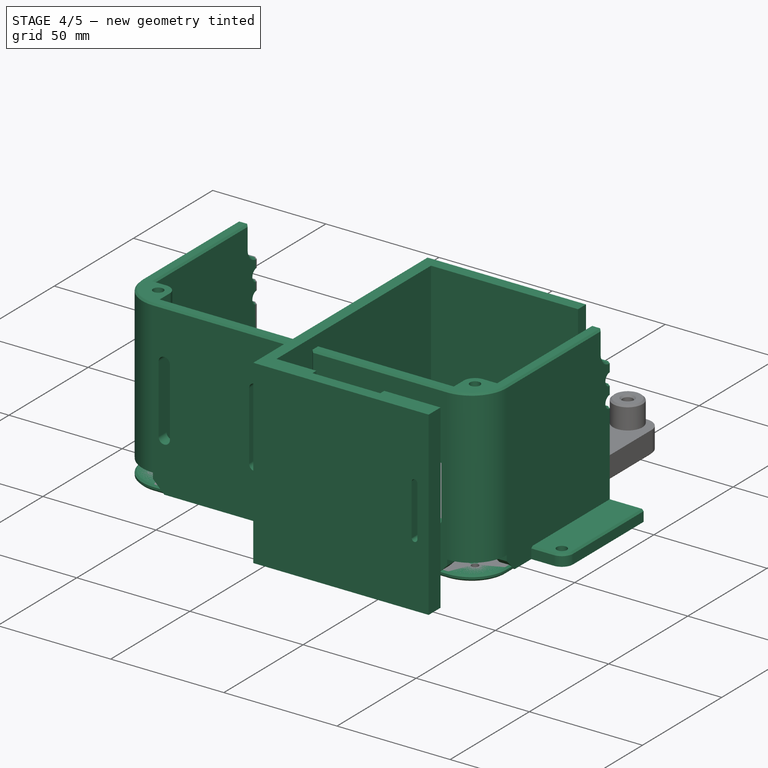
[diagram: stage 4 of 5 — iso view after this stage's code; geometry added in this stage tinted green]
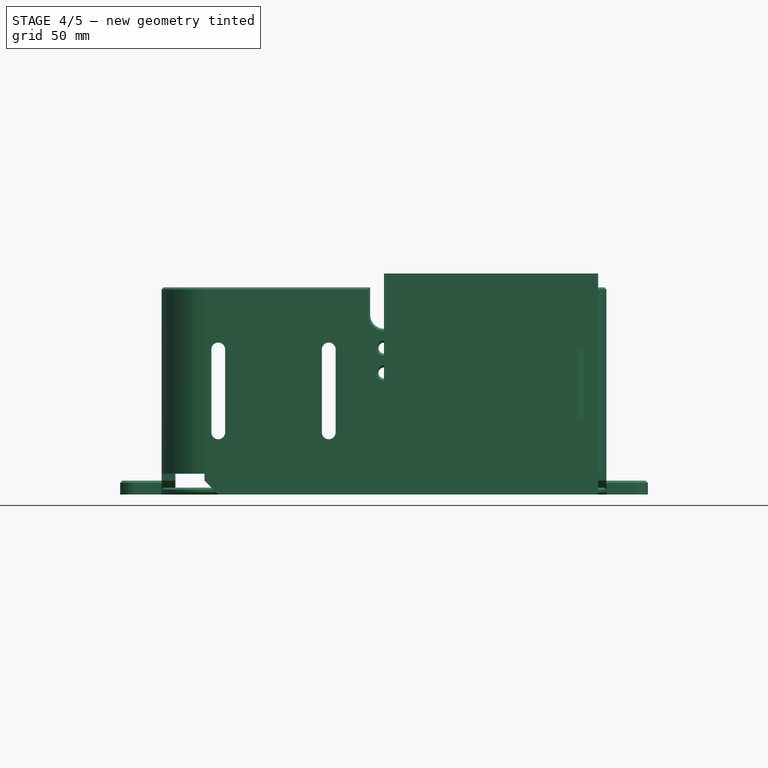
[diagram: stage 4 of 5 — front view after this stage's code; geometry added in this stage tinted green]
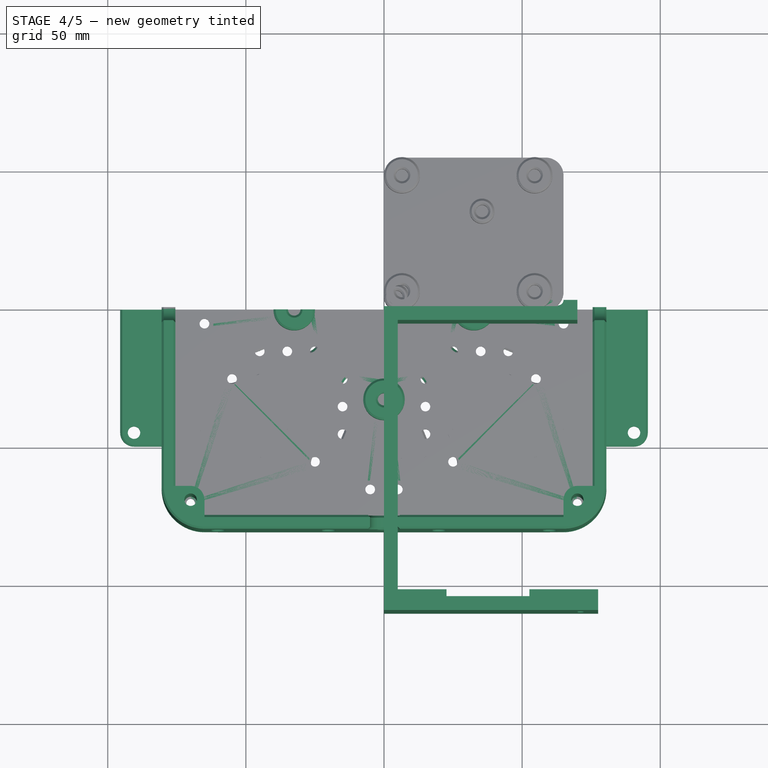
[diagram: stage 4 of 5 — top view after this stage's code; geometry added in this stage tinted green]
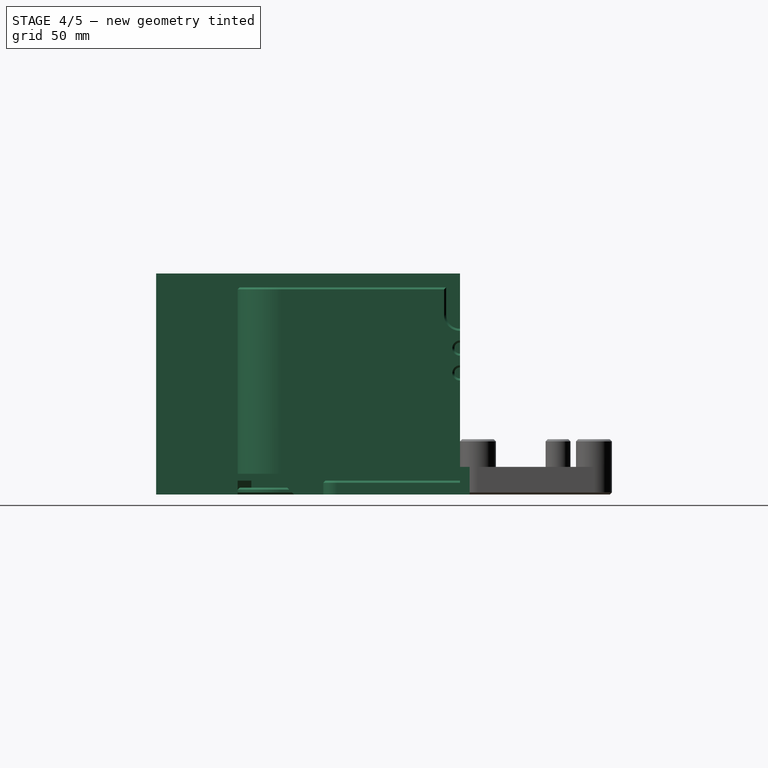
[diagram: stage 4 of 5 — right view after this stage's code; geometry added in this stage tinted green]
FEATURE [PartDesign::Body] Body002
  Group = -> [Sketch002,Pad002,Sketch003,Pocket,Fillet]
  Origin = -> Origin005
  Tip = -> Fillet
FEATURE [Sketcher::SketchObject] Sketch004
  FullyConstrained = true
  MapMode = 5
  Support = -> [XY_Plane006]
  sketch-geometry (18):
    g0: LineSegment StartX=70 StartY=0 StartZ=0 EndX=70 EndY=-5 EndZ=0
    g1: LineSegment StartX=70 StartY=-5 StartZ=0 EndX=5 EndY=-5 EndZ=0
    g2: LineSegment StartX=5 StartY=-5 StartZ=0 EndX=5 EndY=-102.5 EndZ=0
    g3: LineSegment StartX=5 StartY=-102.5 StartZ=0 EndX=22.625 EndY=-102.5 EndZ=0
    g4: LineSegment StartX=22.625 StartY=-102.5 StartZ=0 EndX=22.625 EndY=-105 EndZ=0
    g5: LineSegment StartX=22.625 StartY=-105 StartZ=0 EndX=52.625 EndY=-105 EndZ=0
    g6: LineSegment StartX=77.5 StartY=-102.5 StartZ=0 EndX=77.5 EndY=-110 EndZ=0
    g7: LineSegment StartX=77.5 StartY=-110 StartZ=0 EndX=0 EndY=-110 EndZ=0
    g8: LineSegment StartX=0 StartY=-110 StartZ=0 EndX=0 EndY=0 EndZ=0
    g9: LineSegment StartX=5 StartY=-5 StartZ=0 EndX=0 EndY=-5 EndZ=0
    g10: LineSegment StartX=52.625 StartY=-105 StartZ=0 EndX=52.625 EndY=-102.5 EndZ=0
    g11: LineSegment StartX=0 StartY=0 StartZ=0 EndX=5 EndY=0 EndZ=0
    g12: LineSegment StartX=5 StartY=0 StartZ=0 EndX=70 EndY=0 EndZ=0
    g13: LineSegment StartX=5 StartY=-5 StartZ=0 EndX=5 EndY=0 EndZ=0
    g14: LineSegment StartX=52.625 StartY=-102.5 StartZ=0 EndX=70.25 EndY=-102.5 EndZ=0
    g15: LineSegment StartX=70.25 StartY=-102.5 StartZ=0 EndX=77.5 EndY=-102.5 EndZ=0
    g16: LineSegment StartX=52.625 StartY=-102.5 StartZ=0 EndX=77.5 EndY=-102.5 EndZ=0
    g17: LineSegment StartX=52.625 StartY=-105 StartZ=0 EndX=52.625 EndY=-110 EndZ=0
  constraints (51):
    c: PointOnObject(g0,g-1)
    c: Vertical(g0)
    c: Coincident(g0,g1)
    c: Coincident(g1,g2)
    c: Vertical(g2)
    c: Coincident(g2,g3)
    c: Coincident(g3,g4)
    c: Coincident(g4,g5)
    c: Horizontal(g5)
    c: Vertical(g6)
    c: Coincident(g6,g7)
    c: PointOnObject(g7,g-2)
    c: Horizontal(g7)
    c: Coincident(g7,g8)
    c: Horizontal(g1)
    c: Horizontal(g3)
    c: Vertical(g4)
    c: Distance(g1) = 65
    c: Coincident(g9,g1)
    c: PointOnObject(g9,g8)
    c: Horizontal(g9)
    c: Distance(g9) = 5
    c: Distance(g0) = 5
    c: Distance(g2) = 97.5
    c: Coincident(g5,g10)
    c: Vertical(g10)
    c: Equal(g4,g10)
    c: Distance(g5) = 30
    c: Coincident(g11,g8)
    c: PointOnObject(g11,g-1)
    c: Coincident(g12,g11)
    c: Coincident(g12,g0)
    c: Coincident(g13,g1)
    c: Coincident(g13,g11)
    c: Vertical(g13)
    c: Coincident(g-1,g8)
    c: Coincident(g14,g10)
    c: Horizontal(g14)
    c: Coincident(g15,g14)
    c: Coincident(g15,g6)
    c: Horizontal(g15)
    c: Equal(g3,g14)
    c: Distance(g15) = 7.25
    c: Coincident(g16,g10)
    c: Coincident(g16,g6)
    c: Coincident(g17,g5)
    c: PointOnObject(g17,g7)
    c: Vertical(g17)
    c: Distance(g17) = 5
    c: Distance(g4) = 2.5
    c: DistanceX(g2,g6) = 72.5
FEATURE [PartDesign::Pad] Pad003
  Direction = (1,1,1)
  Length = 80
  Length2 = 100
  Profile = -> Sketch004
  Type = 0
FEATURE [Sketcher::SketchObject] Sketch005
  FullyConstrained = true
  MapMode = 5
  Placement = pos=(0,-110,0) rot=(1,0,0;1.5708rad)
  Support = -> [Pad003]
  sketch-geometry (13):
    g0: LineSegment StartX=0 StartY=0 StartZ=0 EndX=77.5 EndY=0 EndZ=0
    g1: LineSegment StartX=77.5 StartY=0 StartZ=0 EndX=77.5 EndY=40 EndZ=0
    g2: LineSegment StartX=77.5 StartY=40 StartZ=0 EndX=77.5 EndY=80 EndZ=0
    g3: LineSegment StartX=77.5 StartY=40 StartZ=0 EndX=72.5 EndY=40 EndZ=0
    g4: ArcOfCircle CenterX=71.25 CenterY=51.25 CenterZ=0 NormalX=0 NormalY=0 NormalZ=1 AngleXU=0 Radius=1.25 StartAngle=0 EndAngle=3.14159
    g5: ArcOfCircle CenterX=71.25 CenterY=28.75 CenterZ=0 NormalX=0 NormalY=0 NormalZ=1 AngleXU=0 Radius=1.25 StartAngle=3.14159 EndAngle=6.28319
    g6: LineSegment StartX=70 StartY=51.25 StartZ=0 EndX=70 EndY=28.75 EndZ=0
    g7: LineSegment StartX=72.5 StartY=51.25 StartZ=0 EndX=72.5 EndY=40 EndZ=0
    g8: LineSegment StartX=72.5 StartY=40 StartZ=0 EndX=72.5 EndY=28.75 EndZ=0
    g9: LineSegment StartX=72.5 StartY=51.25 StartZ=0 EndX=71.25 EndY=51.25 EndZ=0
    g10: LineSegment StartX=71.25 StartY=51.25 StartZ=0 EndX=70 EndY=51.25 EndZ=0
    g11: LineSegment StartX=70 StartY=28.75 StartZ=0 EndX=71.25 EndY=28.75 EndZ=0
    g12: LineSegment StartX=71.25 StartY=28.75 StartZ=0 EndX=72.5 EndY=28.75 EndZ=0
  constraints (34):
    c: Horizontal(g0)
    c: Coincident(g0,g-1)
    c: Distance(g0) = 77.5
    c: Coincident(g1,g0)
    c: Vertical(g1)
    c: Coincident(g2,g1)
    c: Vertical(g2)
    c: DistanceY(g0,g2) = 80
    c: Equal(g2,g1)
    c: Coincident(g3,g1)
    c: Horizontal(g3)
    c: Tangent(g4,g6) = -1.5708
    c: Tangent(g6,g5) = -1.5708
    c: Vertical(g6)
    c: Equal(g4,g5)
    c: Coincident(g7,g4)
    c: Vertical(g7)
    c: Coincident(g8,g7)
    c: Coincident(g8,g5)
    c: Equal(g7,g8)
    c: Coincident(g7,g3)
    c: Coincident(g9,g4)
    c: Coincident(g9,g4)
    c: Coincident(g10,g4)
    c: Coincident(g10,g4)
    c: Coincident(g11,g5)
    c: Coincident(g11,g5)
    c: Coincident(g12,g5)
    c: Coincident(g12,g5)
    c: Horizontal(g12)
    c: Horizontal(g9)
    c: DistanceX(g4,g4) = 2.5
    c: DistanceX(g3,g3) = 5
    c: DistanceY(g5,g4) = 22.5
FEATURE [PartDesign::Pocket] Pocket001
  BaseFeature = -> Pad003
  Direction = (1,1,1)
  Length = 5
  Length2 = 100
  Profile = -> Sketch005
  Type = 2
FEATURE [PartDesign::Body] Body004
  Group = -> [Sketch006,Pad004,Fillet002,Fillet003,Chamfer002]
  Origin = -> Origin008
  Tip = -> Chamfer002
FEATURE [App::Part] Part003  label="battery_frame_support_part"
  Group = -> [Body004]
  Origin = -> Origin007
  Placement = pos=(222.5,-105,0) rot=(0,0,1;0rad)
FEATURE [Sketcher::SketchObject] Sketch007
  FullyConstrained = true
  MapMode = 5
  Support = -> [XY_Plane006]
  sketch-geometry (12):
    g0: LineSegment StartX=0 StartY=0 StartZ=0 EndX=5 EndY=0 EndZ=0
    g1: LineSegment StartX=63 StartY=0 StartZ=0 EndX=70 EndY=0 EndZ=0
    g2: LineSegment StartX=70 StartY=0 StartZ=0 EndX=70 EndY=3.5 EndZ=0
    g3: LineSegment StartX=70 StartY=3.5 StartZ=0 EndX=65 EndY=3.5 EndZ=0
    g4: LineSegment StartX=65 StartY=3.5 StartZ=0 EndX=63 EndY=3.5 EndZ=0
    g5: LineSegment StartX=63 StartY=3.5 StartZ=0 EndX=61 EndY=3.5 EndZ=0
    g6: LineSegment StartX=61 StartY=3.5 StartZ=0 EndX=56 EndY=3.5 EndZ=0
    g7: LineSegment StartX=56 StartY=3.5 StartZ=0 EndX=56 EndY=0 EndZ=0
    g8: LineSegment StartX=56 StartY=0 StartZ=0 EndX=63 EndY=0 EndZ=0
    g9: ArcOfCircle CenterX=63 CenterY=3.5 CenterZ=0 NormalX=0 NormalY=0 NormalZ=1 AngleXU=0 Radius=2 StartAngle=3.14159 EndAngle=6.28319
    g10: LineSegment StartX=70 StartY=0 StartZ=0 EndX=77.5 EndY=0 EndZ=0
    g11: LineSegment StartX=5 StartY=0 StartZ=0 EndX=70 EndY=0 EndZ=0
  constraints (34):
    c: Coincident(g0,g-1)
    c: PointOnObject(g0,g-1)
    c: Distance(g0) = 5
    c: Coincident(g1,g2)
    c: Vertical(g2)
    c: Coincident(g2,g3)
    c: Horizontal(g3)
    c: Coincident(g3,g4)
    c: Horizontal(g4)
    c: Coincident(g4,g5)
    c: Horizontal(g5)
    c: Coincident(g5,g6)
    c: Coincident(g6,g7)
    c: Coincident(g7,g8)
    c: Coincident(g8,g1)
    c: Vertical(g7)
    c: Horizontal(g6)
    c: Coincident(g9,g4)
    c: Coincident(g9,g3)
    c: Coincident(g9,g5)
    c: Radius(g9) = 2
    c: Equal(g6,g3)
    c: Equal(g8,g1)
    c: Distance(g7) = 3.5
    c: Distance(g6) = 5
    c: Horizontal(g8)
    c: Horizontal(g1)
    c: PointOnObject(g1,g-1)
    c: PointOnObject(g10,g-1)
    c: Distance(g10) = 7.5
    c: DistanceX(g-1,g10) = 77.5
    c: Coincident(g11,g0)
    c: Coincident(g11,g10)
    c: Coincident(g1,g10)
FEATURE [PartDesign::Pad] Pad005
  BaseFeature = -> Pocket001
  Direction = (1,1,1)
  Length = 10
  Length2 = 100
  Profile = -> Sketch007
  Type = 0
FEATURE [PartDesign::FeatureBase] Clone010
  BaseFeature = -> Body006
FEATURE [PartDesign::FeatureBase] Clone011
  BaseFeature = -> Part__Mirroring005
FEATURE [Part::Mirroring] Part__Mirroring010  label="Clone010 (Mirror #8)"
  Base = (0,0,0)
  Normal = (0,1,0)
  Source = -> Clone010
FEATURE [Part::Mirroring] Part__Mirroring011  label="Clone011 (Mirror #9)"
  Base = (0,0,0)
  Normal = (0,1,0)
  Source = -> Clone011
FEATURE [PartDesign::Body] Body007
  Group = -> [Sketch017,Pad008,Sketch018,Pocket007,PolarPattern,Sketch021,Pad010,Sketch022,Pocket008,Chamfer011]
  Origin = -> Origin014
  Tip = -> Chamfer011
FEATURE [PartDesign::FeatureBase] Clone007
  BaseFeature = -> Body007
FEATURE [Part::Mirroring] Part__Mirroring007  label="Clone007 (Mirror #6)"
  Base = (0,0,0)
  Normal = (1,0,0)
  Source = -> Clone007
FEATURE [PartDesign::FeatureBase] Clone008
  BaseFeature = -> Body007
FEATURE [PartDesign::FeatureBase] Clone009
  BaseFeature = -> Part__Mirroring007
FEATURE [Part::Mirroring] Part__Mirroring008  label="Clone009 (Mirror #7)"
  Base = (0,0,0)
  Normal = (0,1,0)
  Source = -> Clone009
FEATURE [Part::Mirroring] Part__Mirroring009  label="Clone008 (Mirror #8)"
  Base = (0,0,0)
  Normal = (0,1,0)
  Source = -> Clone008
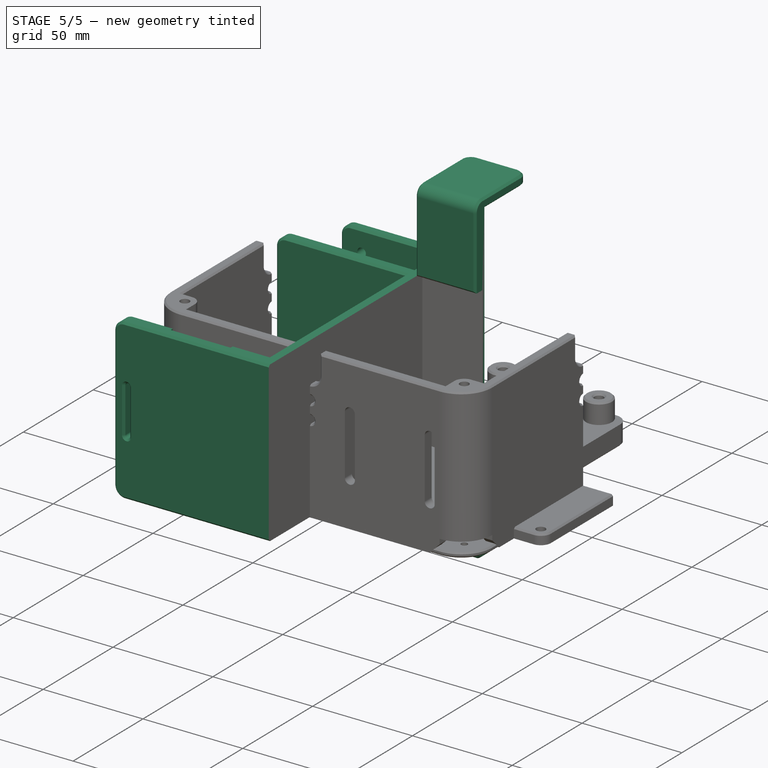
[diagram: stage 5 of 5 — iso view after this stage's code; geometry added in this stage tinted green]
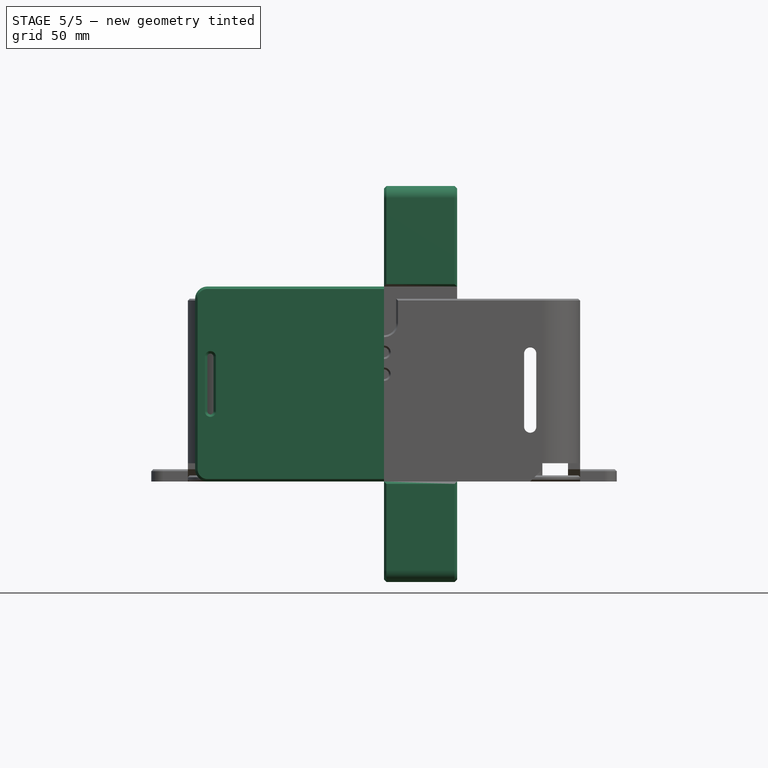
[diagram: stage 5 of 5 — front view after this stage's code; geometry added in this stage tinted green]
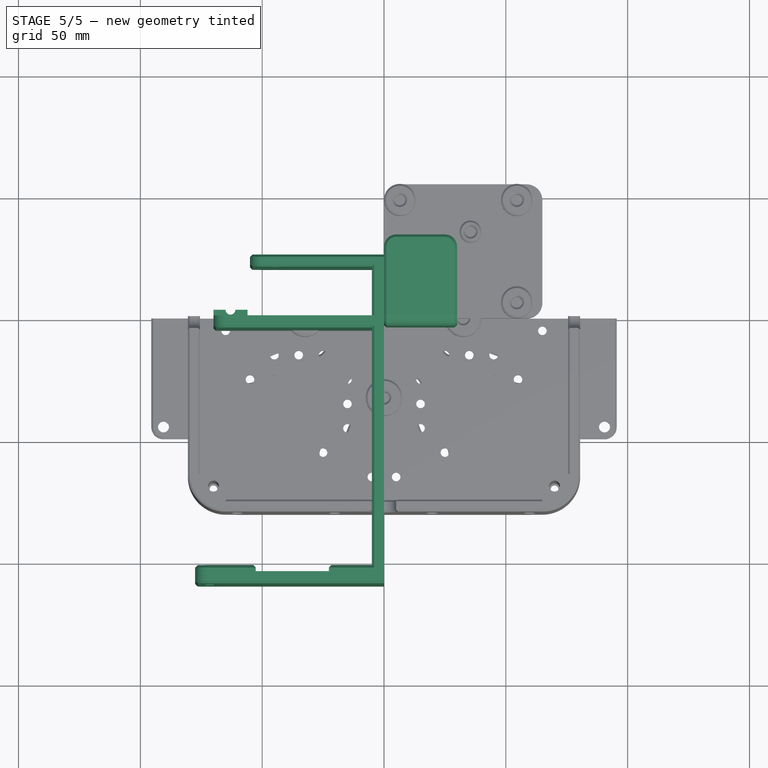
[diagram: stage 5 of 5 — top view after this stage's code; geometry added in this stage tinted green]
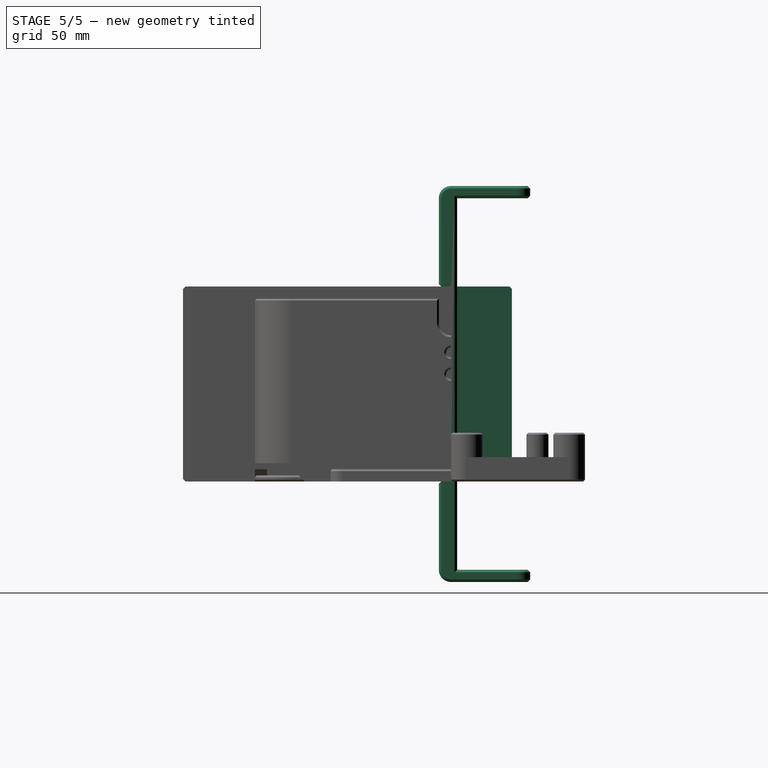
[diagram: stage 5 of 5 — right view after this stage's code; geometry added in this stage tinted green]
FEATURE [Sketcher::SketchObject] Sketch002
  FullyConstrained = true
  MapMode = 5
  Support = -> [XY_Plane005]
  sketch-geometry (6):
    g0: LineSegment StartX=0 StartY=0 StartZ=0 EndX=0 EndY=25 EndZ=0
    g1: LineSegment StartX=0 StartY=25 StartZ=0 EndX=55 EndY=25 EndZ=0
    g2: LineSegment StartX=55 StartY=25 StartZ=0 EndX=55 EndY=20 EndZ=0
    g3: LineSegment StartX=55 StartY=20 StartZ=0 EndX=5 EndY=20 EndZ=0
    g4: LineSegment StartX=5 StartY=20 StartZ=0 EndX=5 EndY=0 EndZ=0
    g5: LineSegment StartX=5 StartY=0 StartZ=0 EndX=0 EndY=0 EndZ=0
  constraints (17):
    c: Coincident(g-1,g0)
    c: PointOnObject(g0,g-2)
    c: Coincident(g0,g1)
    c: Horizontal(g1)
    c: Coincident(g1,g2)
    c: Vertical(g2)
    c: Coincident(g2,g3)
    c: Horizontal(g3)
    c: Coincident(g3,g4)
    c: PointOnObject(g4,g-1)
    c: Vertical(g4)
    c: Coincident(g4,g5)
    c: Coincident(g5,g0)
    c: Distance(g4) = 20
    c: Distance(g2) = 5
    c: Distance(g1) = 55
    c: Distance(g5) = 5
FEATURE [PartDesign::Pad] Pad002
  Direction = (1,1,1)
  Length = 80
  Length2 = 100
  Profile = -> Sketch002
  Type = 0
FEATURE [Sketcher::SketchObject] Sketch003
  FullyConstrained = true
  MapMode = 5
  Placement = pos=(0,25,0) rot=(0,0.707107,0.707107;3.14159rad)
  Support = -> [Pad002]
  sketch-geometry (11):
    g0: LineSegment StartX=0 StartY=0 StartZ=0 EndX=-55 EndY=0 EndZ=0
    g1: LineSegment StartX=-55 StartY=0 StartZ=0 EndX=-55 EndY=80 EndZ=0
    g2: LineSegment StartX=-55 StartY=80 StartZ=0 EndX=0 EndY=80 EndZ=0
    g3: LineSegment StartX=0 StartY=80 StartZ=0 EndX=0 EndY=0 EndZ=0
    g4: LineSegment StartX=0 StartY=69.5 StartZ=0 EndX=-44.5 EndY=69.5 EndZ=0
    g5: LineSegment StartX=0 StartY=10.5 StartZ=0 EndX=-44.5 EndY=10.5 EndZ=0
    g6: LineSegment StartX=-44.5 StartY=69.5 StartZ=0 EndX=-44.5 EndY=10.5 EndZ=0
    g7: LineSegment StartX=-44.5 StartY=69.5 StartZ=0 EndX=-44.5 EndY=80 EndZ=0
    g8: LineSegment StartX=-44.5 StartY=10.5 StartZ=0 EndX=-44.5 EndY=0 EndZ=0
    g9: Circle CenterX=-44.5 CenterY=69.5 CenterZ=0 NormalX=0 NormalY=0 NormalZ=1 AngleXU=0 Radius=2.15
    g10: Circle CenterX=-44.5 CenterY=10.5 CenterZ=0 NormalX=0 NormalY=0 NormalZ=1 AngleXU=0 Radius=2.15
  constraints (31):
    c: Coincident(g0,g1)
    c: Coincident(g1,g2)
    c: Coincident(g2,g3)
    c: Coincident(g3,g0)
    c: Horizontal(g0)
    c: Horizontal(g2)
    c: Vertical(g1)
    c: Vertical(g3)
    c: Coincident(g0,g-1)
    c: Distance(g2) = 55
    c: Distance(g1) = 80
    c: PointOnObject(g4,g3)
    c: Horizontal(g4)
    c: PointOnObject(g5,g3)
    c: Horizontal(g5)
    c: Coincident(g6,g4)
    c: Vertical(g6)
    c: Coincident(g7,g4)
    c: PointOnObject(g7,g2)
    c: Coincident(g8,g6)
    c: PointOnObject(g8,g0)
    c: Vertical(g8)
    c: Coincident(g5,g6)
    c: Vertical(g7)
    c: Equal(g7,g8)
    c: Distance(g4) = 44.5
    c: Distance(g6) = 59
    c: Coincident(g9,g4)
    c: Coincident(g10,g5)
    c: Equal(g9,g10)
    c: Radius(g9) = 2.15
FEATURE [PartDesign::Pocket] Pocket
  BaseFeature = -> Pad002
  Direction = (1,1,1)
  Length = 5
  Length2 = 100
  Profile = -> Sketch003
  Type = 2
FEATURE [PartDesign::Fillet] Fillet
  Base = -> Pocket [Edge16,Edge13]
  BaseFeature = -> Pocket
  Radius = 5
  SupportTransform = false
  UseAllEdges = false
FEATURE [Sketcher::SketchObject] Sketch006
  FullyConstrained = true
  MapMode = 5
  Placement = pos=(0,0,0) rot=(0.57735,0.57735,0.57735;2.0944rad)
  Support = -> [YZ_Plane008]
  sketch-geometry (14):
    g0: LineSegment StartX=0 StartY=0 StartZ=0 EndX=0 EndY=80 EndZ=0
    g1: LineSegment StartX=0 StartY=80 StartZ=0 EndX=-5 EndY=80 EndZ=0
    g2: LineSegment StartX=-5 StartY=80 StartZ=0 EndX=-5 EndY=121.25 EndZ=0
    g3: LineSegment StartX=-5 StartY=121.25 StartZ=0 EndX=32.5 EndY=121.25 EndZ=0
    g4: LineSegment StartX=32.5 StartY=121.25 StartZ=0 EndX=32.5 EndY=116.25 EndZ=0
    g5: LineSegment StartX=32.5 StartY=116.25 StartZ=0 EndX=2.5 EndY=116.25 EndZ=0
    g6: LineSegment StartX=2.5 StartY=116.25 StartZ=0 EndX=2.5 EndY=-36.25 EndZ=0
    g7: LineSegment StartX=2.5 StartY=-36.25 StartZ=0 EndX=32.5 EndY=-36.25 EndZ=0
    g8: LineSegment StartX=32.5 StartY=-36.25 StartZ=0 EndX=32.5 EndY=-41.25 EndZ=0
    g9: LineSegment StartX=32.5 StartY=-41.25 StartZ=0 EndX=-5 EndY=-41.25 EndZ=0
    g10: LineSegment StartX=-5 StartY=-41.25 StartZ=0 EndX=-5 EndY=0 EndZ=0
    g11: LineSegment StartX=-5 StartY=0 StartZ=0 EndX=0 EndY=0 EndZ=0
    g12: LineSegment StartX=-5 StartY=80 StartZ=0 EndX=-5 EndY=0 EndZ=0
    g13: LineSegment StartX=0 StartY=80 StartZ=0 EndX=2.5 EndY=80 EndZ=0
  constraints (40):
    c: Coincident(g-1,g0)
    c: PointOnObject(g0,g-2)
    c: Coincident(g0,g1)
    c: Coincident(g1,g2)
    c: Vertical(g2)
    c: Coincident(g2,g3)
    c: Horizontal(g3)
    c: Coincident(g3,g4)
    c: Vertical(g4)
    c: Coincident(g4,g5)
    c: Horizontal(g5)
    c: Coincident(g5,g6)
    c: Vertical(g6)
    c: Coincident(g6,g7)
    c: Horizontal(g7)
    c: Coincident(g7,g8)
    c: Vertical(g8)
    c: Coincident(g8,g9)
    c: Horizontal(g9)
    c: Coincident(g9,g10)
    c: PointOnObject(g10,g-1)
    c: Coincident(g10,g11)
    c: Coincident(g11,g0)
    c: Coincident(g12,g1)
    c: Coincident(g12,g10)
    c: Vertical(g12)
    c: Vertical(g10)
    c: Horizontal(g1)
    c: Distance(g1) = 5
    c: Coincident(g13,g0)
    c: PointOnObject(g13,g6)
    c: Horizontal(g13)
    c: Distance(g13) = 2.5
    c: Distance(g4) = 5
    c: Equal(g4,g8)
    c: Equal(g2,g10)
    c: Equal(g3,g9)
    c: Distance(g5) = 30
    c: Distance(g6) = 152.5
    c: Distance(g0) = 80
FEATURE [PartDesign::Pad] Pad004
  Direction = (1,1,1)
  Length = 30
  Length2 = 100
  Placement = pos=(0,0,0) rot=(0.57735,0.57735,0.57735;2.0944rad)
  Profile = -> Sketch006
  Type = 0
FEATURE [PartDesign::Fillet] Fillet002
  Base = -> Pad004 [Edge15,Edge16,Edge27,Edge28]
  BaseFeature = -> Pad004
  Placement = pos=(0,0,0) rot=(0.57735,0.57735,0.57735;2.0944rad)
  Radius = 5
  SupportTransform = false
  UseAllEdges = false
FEATURE [PartDesign::Fillet] Fillet003
  Base = -> Fillet002 [Edge6,Edge45]
  BaseFeature = -> Fillet002
  Placement = pos=(0,0,0) rot=(0.57735,0.57735,0.57735;2.0944rad)
  Radius = 5
  SupportTransform = false
  UseAllEdges = false
FEATURE [PartDesign::Chamfer] Chamfer002
  Angle = 45
  Base = -> Fillet003 [Edge28,Edge12,Edge37,Edge44,Edge52,Edge5,Edge39,Edge47]
  BaseFeature = -> Fillet003
  ChamferType = 0
  FlipDirection = false
  Placement = pos=(0,0,0) rot=(0.57735,0.57735,0.57735;2.0944rad)
  Size = 1
  Size2 = 1
  SupportTransform = false
  UseAllEdges = false
FEATURE [Sketcher::SketchObject] Sketch008
  FullyConstrained = true
  MapMode = 5
  Placement = pos=(0,3.5,0) rot=(0,0.707107,0.707107;3.14159rad)
  Support = -> [Pad005]
  sketch-geometry (8):
    g0: LineSegment StartX=0 StartY=0 StartZ=0 EndX=-5 EndY=0 EndZ=0
    g1: LineSegment StartX=-70 StartY=0 StartZ=0 EndX=-77.5 EndY=0 EndZ=0
    g2: LineSegment StartX=-70 StartY=0 StartZ=0 EndX=-70 EndY=2.5 EndZ=0
    g3: LineSegment StartX=-70 StartY=2.5 StartZ=0 EndX=-68.5 EndY=2.5 EndZ=0
    g4: LineSegment StartX=-68.5 StartY=2.5 StartZ=0 EndX=-66.5 EndY=2.5 EndZ=0
    g5: LineSegment StartX=-66.5 StartY=2.5 StartZ=0 EndX=-66.5 EndY=7.5 EndZ=0
    g6: LineSegment StartX=-66.5 StartY=7.5 StartZ=0 EndX=-68.5 EndY=7.5 EndZ=0
    g7: LineSegment StartX=-68.5 StartY=7.5 StartZ=0 EndX=-68.5 EndY=2.5 EndZ=0
  constraints (24):
    c: Coincident(g0,g-1)
    c: PointOnObject(g0,g-1)
    c: PointOnObject(g1,g-1)
    c: Horizontal(g1)
    c: Distance(g1) = 7.5
    c: Distance(g0) = 5
    c: DistanceX(g1,g-1) = 77.5
    c: Vertical(g2)
    c: Coincident(g3,g2)
    c: Horizontal(g3)
    c: Distance(g2) = 2.5
    c: Distance(g3) = 1.5
    c: Coincident(g4,g5)
    c: Coincident(g5,g6)
    c: Coincident(g6,g7)
    c: Coincident(g7,g4)
    c: Horizontal(g4)
    c: Horizontal(g6)
    c: Vertical(g5)
    c: Vertical(g7)
    c: Coincident(g4,g3)
    c: Distance(g4) = 2
    c: Distance(g5) = 5
    c: Coincident(g2,g1)
FEATURE [Sketcher::SketchObject] Sketch009
  FullyConstrained = true
  MapMode = 5
  Placement = pos=(0,3.5,0) rot=(0,0.707107,0.707107;3.14159rad)
  Support = -> [Pad005]
  sketch-geometry (4):
    g0: LineSegment StartX=0 StartY=0 StartZ=0 EndX=-5 EndY=0 EndZ=0
    g1: LineSegment StartX=-70 StartY=0 StartZ=0 EndX=-77.5 EndY=0 EndZ=0
    g2: LineSegment StartX=-63 StartY=0 StartZ=0 EndX=-63 EndY=10 EndZ=0
    g3: LineSegment StartX=-70 StartY=0 StartZ=0 EndX=-63 EndY=0 EndZ=0
  constraints (13):
    c: Coincident(g-1,g0)
    c: PointOnObject(g0,g-1)
    c: PointOnObject(g2,g-1)
    c: PointOnObject(g1,g-1)
    c: Vertical(g2)
    c: DistanceX(g1,g-1) = 77.5
    c: Distance(g1) = 7.5
    c: Distance(g0) = 5
    c: Distance(g2) = 10
    c: PointOnObject(g1,g-1)
    c: Coincident(g3,g1)
    c: Coincident(g3,g2)
    c: Distance(g3) = 7
FEATURE [PartDesign::Groove] Groove
  Angle = 360
  Axis = (0,2e-16,1)
  Base = (63,3.5,0)
  BaseFeature = -> Pad005
  Profile = -> Sketch008
  ReferenceAxis = -> Sketch009 [Edge1]
  Reversed = true
FEATURE [PartDesign::Fillet] Fillet004
  Base = -> Groove [Edge4,Edge35,Edge22]
  BaseFeature = -> Groove
  Radius = 5
  SupportTransform = false
  UseAllEdges = false
FEATURE [PartDesign::Chamfer] Chamfer
  Angle = 45
  Base = -> Fillet004 [Edge66,Edge75]
  BaseFeature = -> Fillet004
  ChamferType = 0
  FlipDirection = false
  Size = 1
  Size2 = 1
  SupportTransform = false
  UseAllEdges = false
FEATURE [PartDesign::Boolean] Boolean
  BaseFeature = -> Chamfer
  Group = -> [Body002]
  Type = 0
FEATURE [PartDesign::Chamfer] Chamfer003
  Angle = 45
  Base = -> Boolean [Edge107,Edge113,Edge99,Edge77,Edge91,Edge9,Edge41,Edge44,Edge31,Edge29,Edge46,Edge33,Edge72,Edge8]
  BaseFeature = -> Boolean
  ChamferType = 0
  FlipDirection = false
  Size = 1
  Size2 = 1
  SupportTransform = false
  UseAllEdges = false
FEATURE [PartDesign::Body] Body003
  Group = -> [Sketch004,Pad003,Sketch005,Pocket001,Sketch007,Pad005,Sketch008,Sketch009,Groove,Fillet004,Chamfer,Boolean,Chamfer003]
  Origin = -> Origin006
  Tip = -> Chamfer003
FEATURE [PartDesign::FeatureBase] Clone
  BaseFeature = -> Body003
FEATURE [Part::Mirroring] Part__Mirroring  label="Clone (Mirror #1)"
  Base = (0,0,0)
  Normal = (1,0,0)
  Source = -> Clone
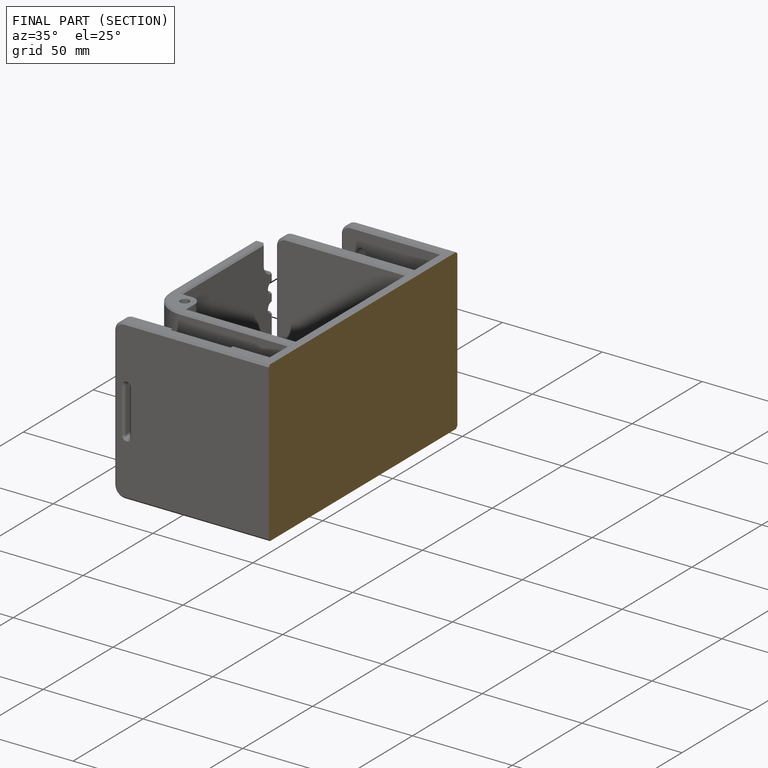
[diagram: finished part — half-section view (interior)]
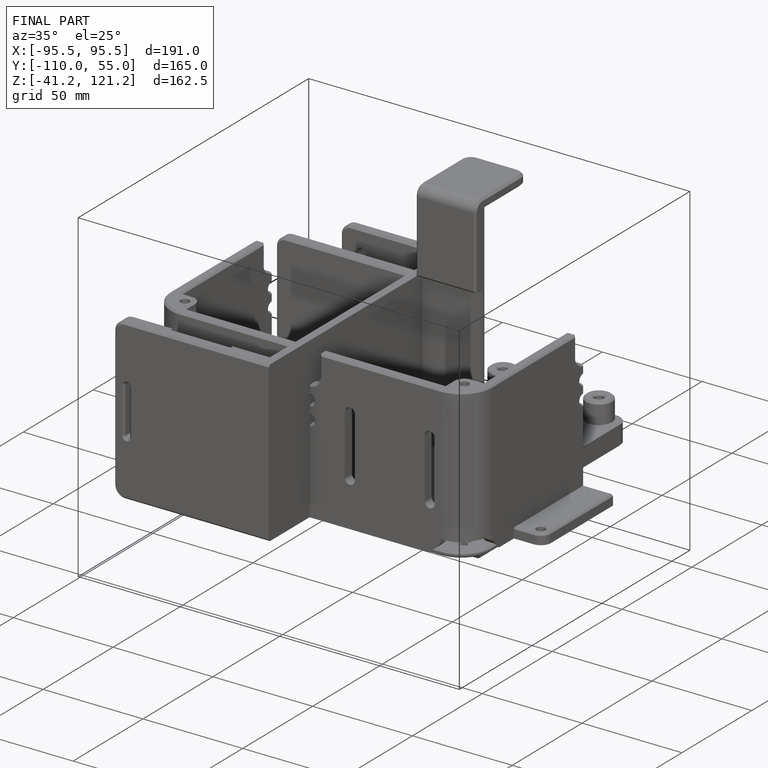
[diagram: finished part — iso view with bounding-box wireframe]
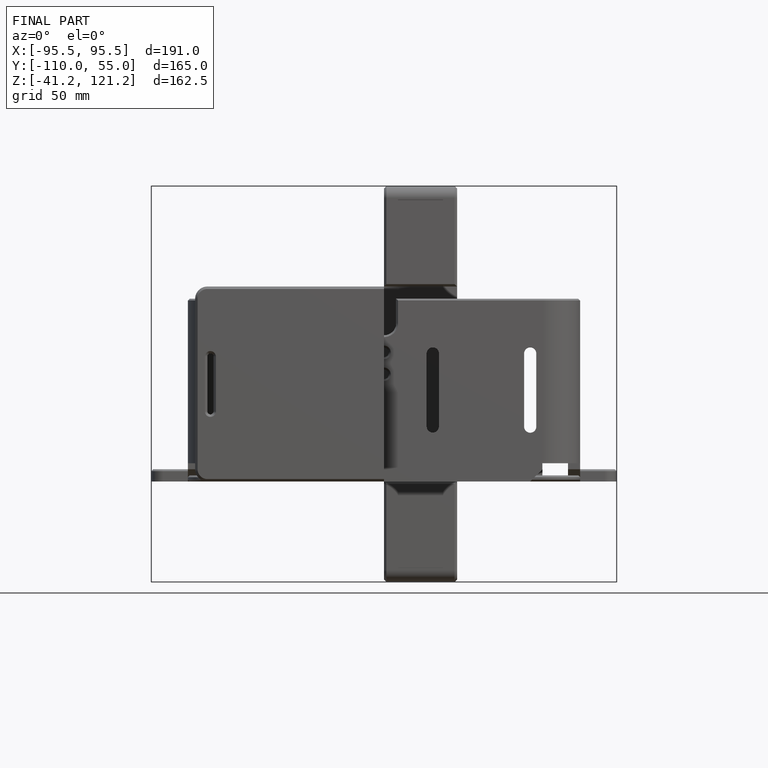
[diagram: finished part — front view with bounding-box wireframe]
